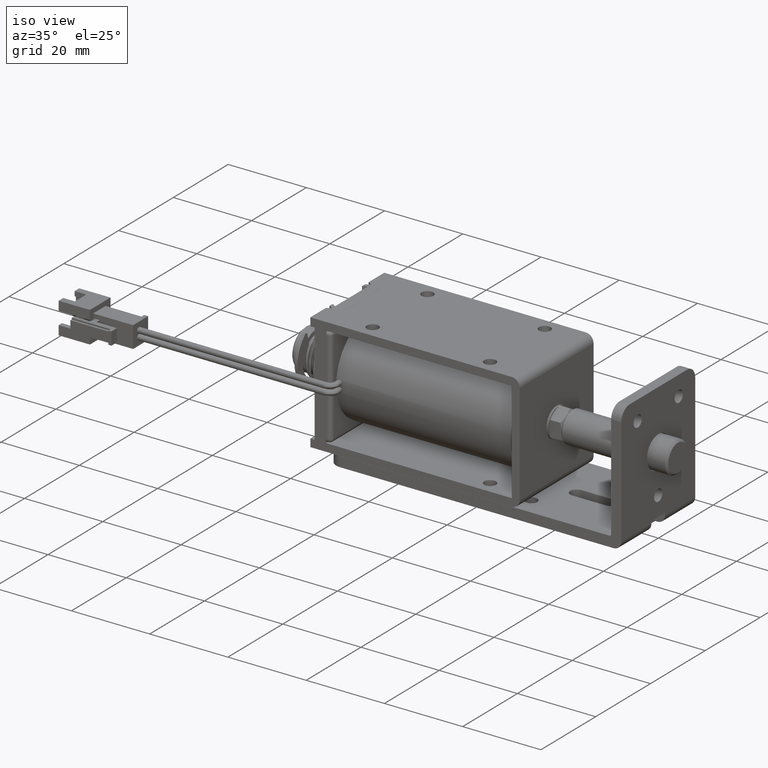
[diagram: clean part render]
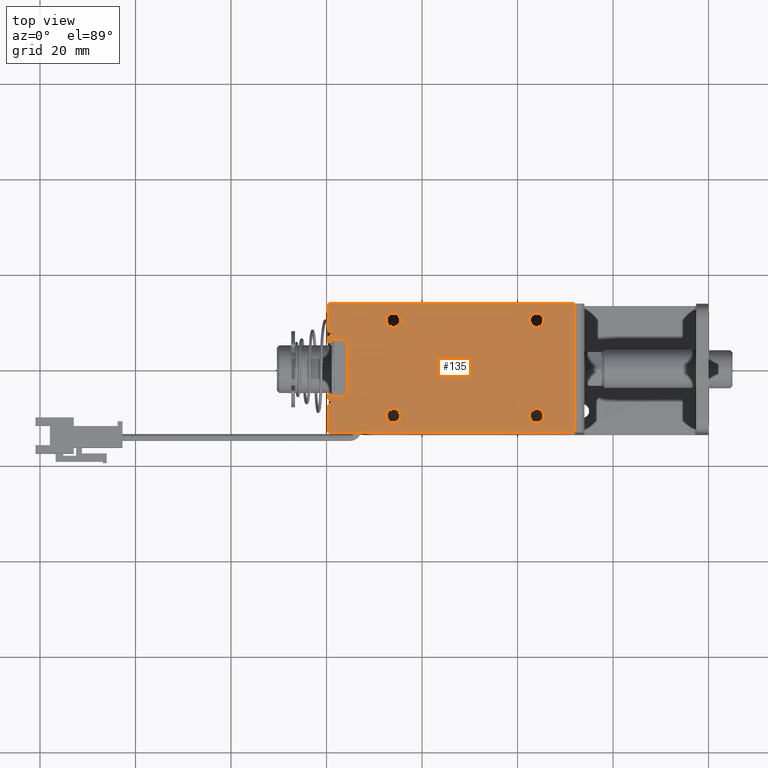
[diagram: tour spotlight — one face highlighted and labeled with its STEP entity id]
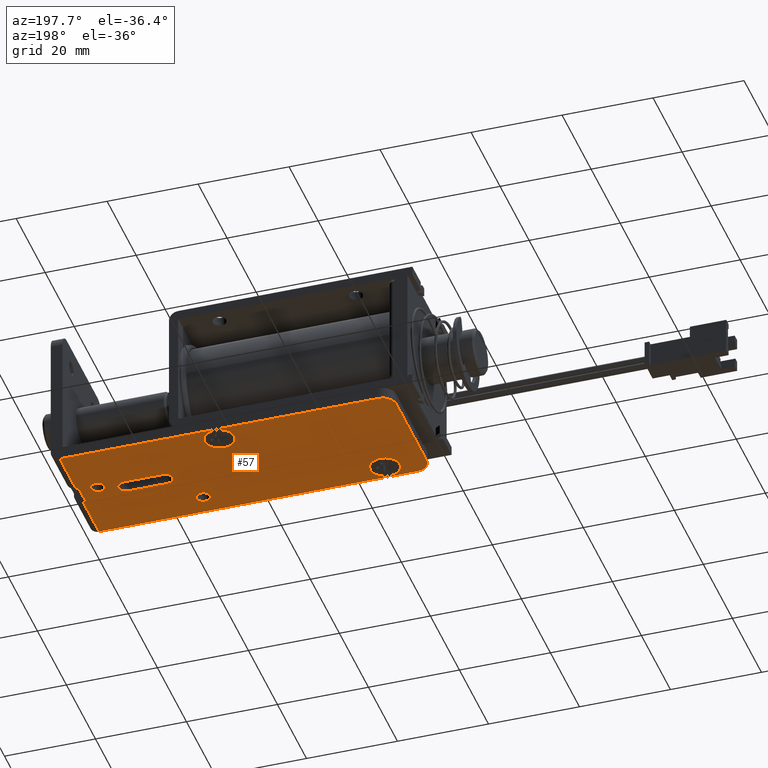
[diagram: tour spotlight — one face highlighted and labeled with its STEP entity id]
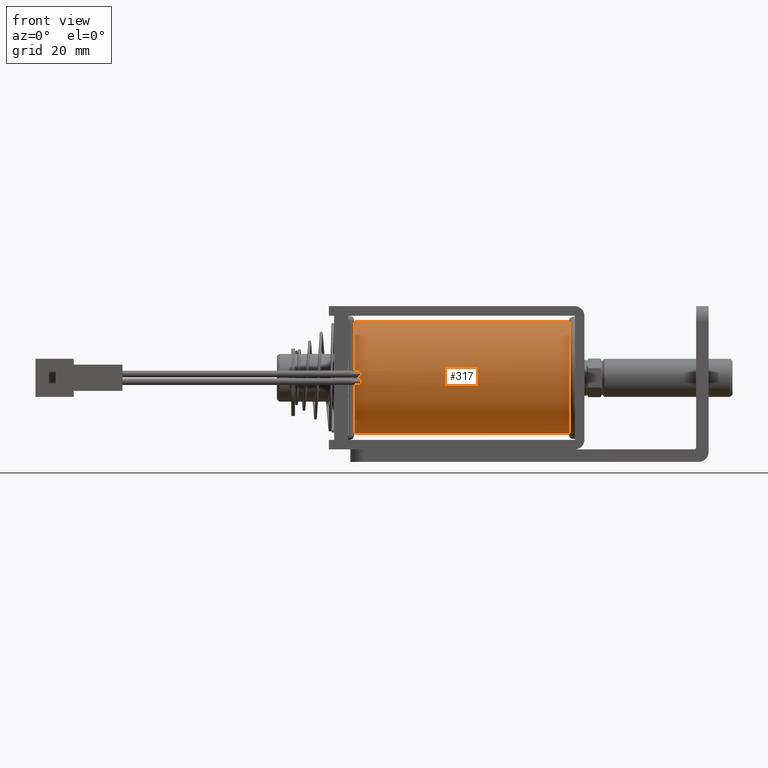
[diagram: tour spotlight — one face highlighted and labeled with its STEP entity id]
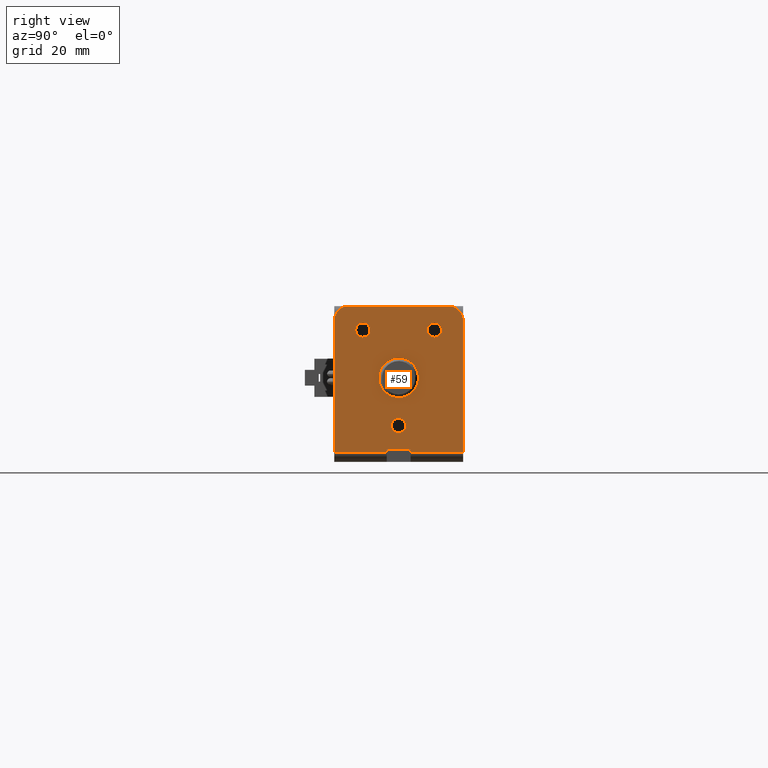
[diagram: tour spotlight — one face highlighted and labeled with its STEP entity id]
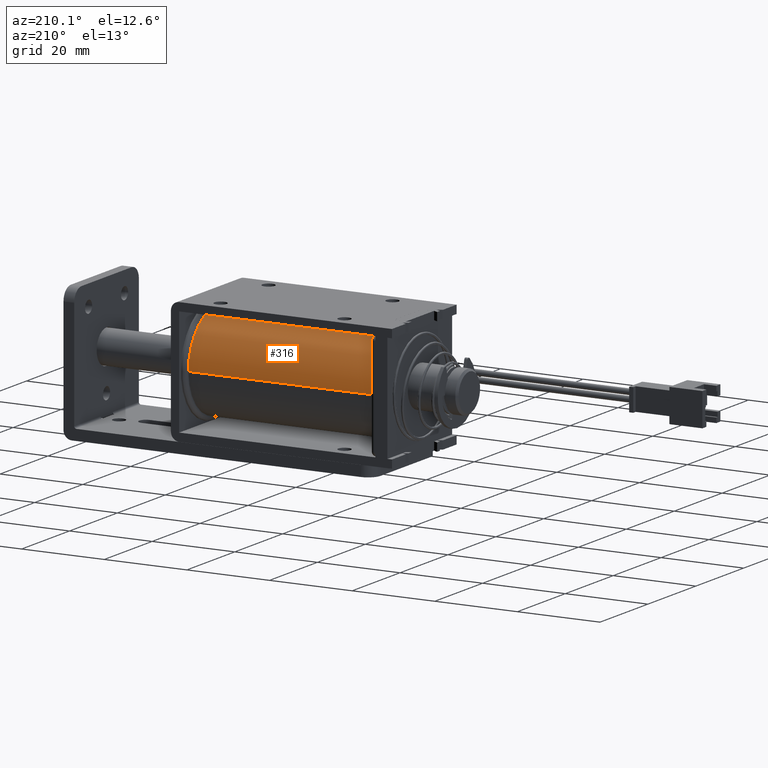
[diagram: tour spotlight — one face highlighted and labeled with its STEP entity id]
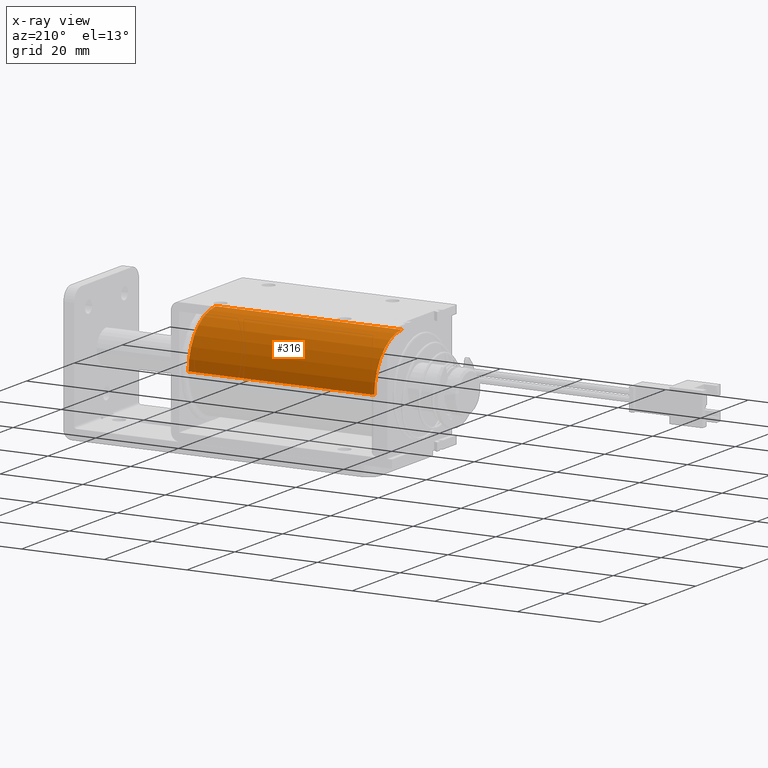
[diagram: x-ray of the same camera — body ghosted, this tour face saturated]
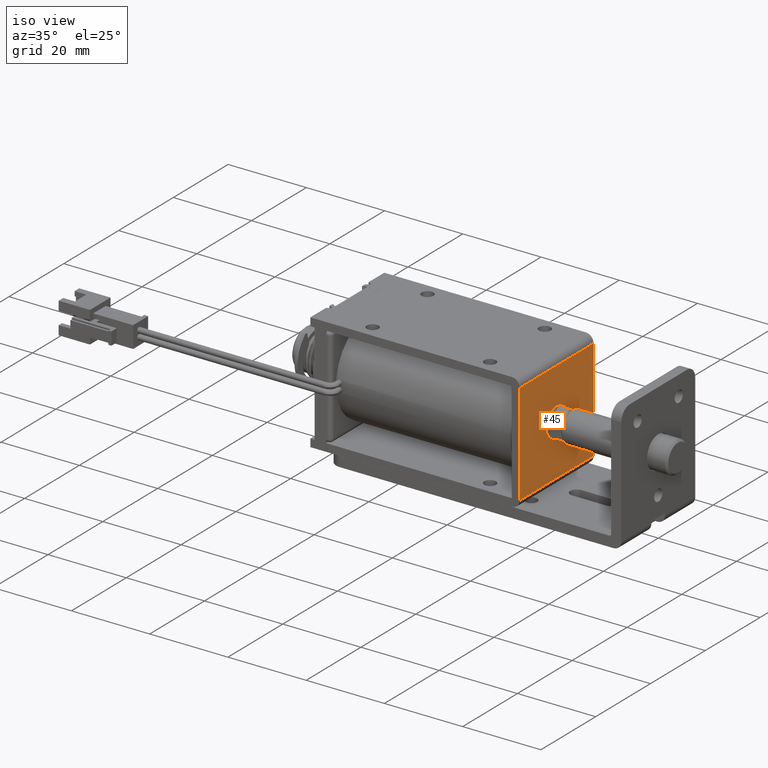
[diagram: tour spotlight — one face highlighted and labeled with its STEP entity id]
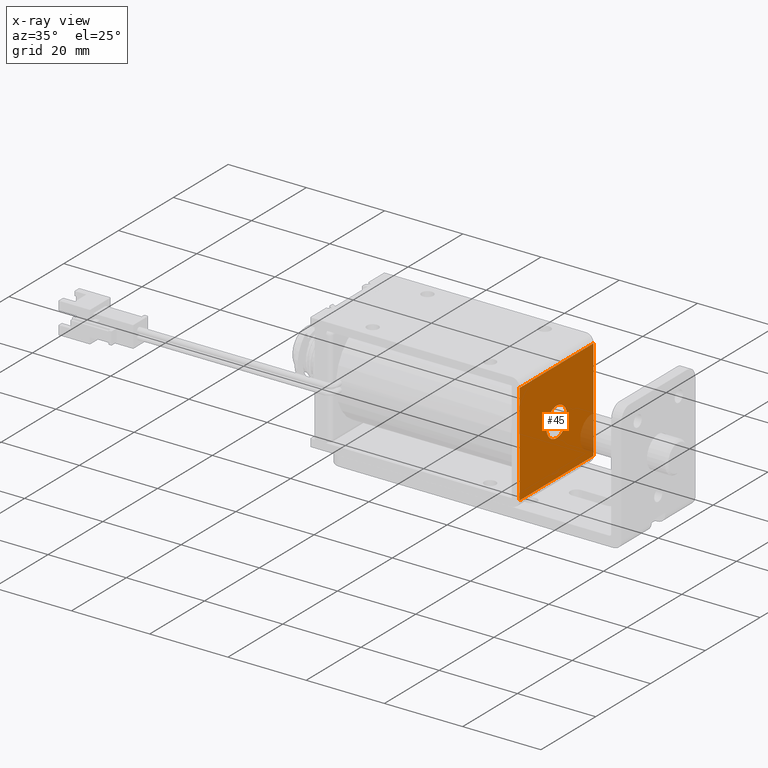
[diagram: x-ray of the same camera — body ghosted, this tour face saturated]
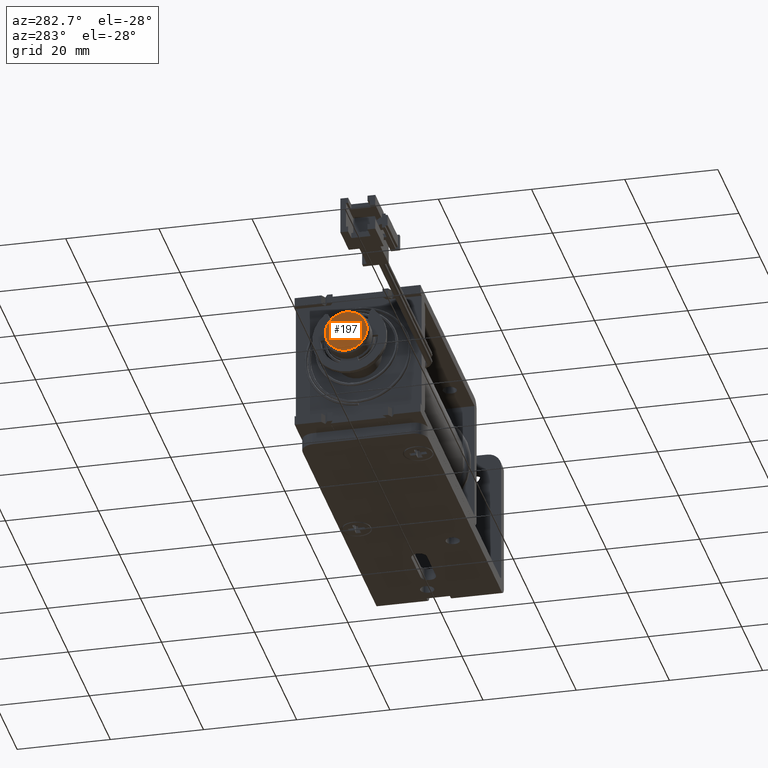
[diagram: tour spotlight — one face highlighted and labeled with its STEP entity id]
A machine part: a face-by-face anatomy tour. The part has 346 B-rep faces; the first image is the clean iso view, then the 7 largest visible faces are spotlighted one at a time (largest first), each with its STEP entity span.

Face 1 — top view, entity #135. In plain terms, the highlighted planar face has unit normal (0, -0, 1).
Definition (entity closure, byte-faithful):
#135=ADVANCED_FACE('',(#1363,#1364,#1365,#1366,#1367),#1362,.T.);
#1362=PLANE('',#4394);
#1363=FACE_OUTER_BOUND('',#4395,.T.);
#1364=FACE_BOUND('',#4396,.T.);
#1365=FACE_BOUND('',#4397,.T.);
#1366=FACE_BOUND('',#4398,.T.);
#1367=FACE_BOUND('',#4399,.T.);
#4391=CARTESIAN_POINT('',(-8.46500000000E+001,-1.62000000000E+001,1.50000000000E+001));
#4392=DIRECTION('',(0.00000000000E+000,-0.00000000000E+000,1.00000000000E+000));
#4393=DIRECTION('',(1.00000000000E+000,0.00000000000E+000,-0.00000000000E+000));
#4394=AXIS2_PLACEMENT_3D('',#4391,#4392,#4393);
#4395=EDGE_LOOP('',(#7533,#7534,#7535,#7536,#7537,#7538,#7539,#7540,#7541,#7542,#7543,#7544,#7545,#7546,#7547,#7548));
#4396=EDGE_LOOP('',(#7549,#7550));
#4397=EDGE_LOOP('',(#7551,#7552));
#4398=EDGE_LOOP('',(#7553,#7554));
#4399=EDGE_LOOP('',(#7555,#7556));
#7533=ORIENTED_EDGE('',*,*,#9128,.F.);
#7534=ORIENTED_EDGE('',*,*,#9129,.F.);
#7535=ORIENTED_EDGE('',*,*,#9130,.F.);
#7536=ORIENTED_EDGE('',*,*,#9131,.F.);
#7537=ORIENTED_EDGE('',*,*,#9132,.T.);
#7538=ORIENTED_EDGE('',*,*,#9133,.F.);
#7539=ORIENTED_EDGE('',*,*,#9134,.F.);
#7540=ORIENTED_EDGE('',*,*,#9135,.T.);
#7541=ORIENTED_EDGE('',*,*,#9136,.F.);
#7542=ORIENTED_EDGE('',*,*,#9137,.F.);
#7543=ORIENTED_EDGE('',*,*,#9138,.T.);
#7544=ORIENTED_EDGE('',*,*,#9139,.T.);
#7545=ORIENTED_EDGE('',*,*,#9140,.F.);
#7546=ORIENTED_EDGE('',*,*,#9141,.F.);
#7547=ORIENTED_EDGE('',*,*,#9142,.T.);
#7548=ORIENTED_EDGE('',*,*,#9143,.F.);
#7549=ORIENTED_EDGE('',*,*,#9144,.F.);
#7550=ORIENTED_EDGE('',*,*,#9145,.F.);
#7551=ORIENTED_EDGE('',*,*,#9146,.F.);
#7552=ORIENTED_EDGE('',*,*,#9147,.F.);
#7553=ORIENTED_EDGE('',*,*,#9148,.F.);
#7554=ORIENTED_EDGE('',*,*,#9149,.F.);
#7555=ORIENTED_EDGE('',*,*,#9150,.F.);
#7556=ORIENTED_EDGE('',*,*,#9151,.F.);
#9128=EDGE_CURVE('',#12230,#12231,#12232,.T.);
#9129=EDGE_CURVE('',#12238,#12230,#12239,.T.);
#9130=EDGE_CURVE('',#12245,#12238,#12246,.T.);
#9131=EDGE_CURVE('',#12252,#12245,#12253,.T.);
#9132=EDGE_CURVE('',#12252,#12259,#12260,.T.);
#9133=EDGE_CURVE('',#12266,#12259,#12267,.T.);
#9134=EDGE_CURVE('',#12273,#12266,#12274,.T.);
#9135=EDGE_CURVE('',#12273,#12280,#12281,.T.);
#9136=EDGE_CURVE('',#12287,#12280,#12288,.T.);
#9137=EDGE_CURVE('',#12294,#12287,#12295,.T.);
#9138=EDGE_CURVE('',#12294,#12301,#12302,.T.);
#9139=EDGE_CURVE('',#12301,#12308,#12309,.T.);
#9140=EDGE_CURVE('',#12315,#12308,#12316,.T.);
#9141=EDGE_CURVE('',#12322,#12315,#12323,.T.);
#9142=EDGE_CURVE('',#12322,#12329,#12330,.T.);
#9143=EDGE_CURVE('',#12231,#12329,#12336,.T.);
#9144=EDGE_CURVE('',#12342,#12343,#12344,.T.);
#9145=EDGE_CURVE('',#12343,#12342,#12350,.T.);
#9146=EDGE_CURVE('',#12356,#12357,#12358,.T.);
#9147=EDGE_CURVE('',#12357,#12356,#12364,.T.);
#9148=EDGE_CURVE('',#12370,#12371,#12372,.T.);
#9149=EDGE_CURVE('',#12371,#12370,#12378,.T.);
#9150=EDGE_CURVE('',#12384,#12385,#12386,.T.);
#9151=EDGE_CURVE('',#12385,#12384,#12392,.T.);
#12230=VERTEX_POINT('',#17248);
#12231=VERTEX_POINT('',#17249);
#12232=LINE('',#17250,#17251);
#12238=VERTEX_POINT('',#17253);
#12239=LINE('',#17254,#17255);
#12245=VERTEX_POINT('',#17257);
#12246=LINE('',#17258,#17259);
#12252=VERTEX_POINT('',#17261);
#12253=LINE('',#17262,#17263);
#12259=VERTEX_POINT('',#17265);
#12260=LINE('',#17266,#17267);
#12266=VERTEX_POINT('',#17269);
#12267=LINE('',#17270,#17271);
#12273=VERTEX_POINT('',#17273);
#12274=LINE('',#17274,#17275);
#12280=VERTEX_POINT('',#17277);
#12281=LINE('',#17278,#17279);
#12287=VERTEX_POINT('',#17281);
#12288=LINE('',#17282,#17283);
#12294=VERTEX_POINT('',#17285);
#12295=LINE('',#17286,#17287);
#12301=VERTEX_POINT('',#17289);
#12302=LINE('',#17290,#17291);
#12308=VERTEX_POINT('',#17293);
#12309=LINE('',#17294,#17295);
#12315=VERTEX_POINT('',#17297);
#12316=LINE('',#17298,#17299);
#12322=VERTEX_POINT('',#17301);
#12323=LINE('',#17302,#17303);
#12329=VERTEX_POINT('',#17305);
#12330=LINE('',#17306,#17307);
#12336=LINE('',#17309,#17310);
#12342=VERTEX_POINT('',#17312);
#12343=VERTEX_POINT('',#17313);
#12344=CIRCLE('',#17317,1.50000000000E+000);
#12350=CIRCLE('',#17321,1.50000000000E+000);
#12356=VERTEX_POINT('',#17322);
#12357=VERTEX_POINT('',#17323);
#12358=CIRCLE('',#17327,1.50000000000E+000);
#12364=CIRCLE('',#17331,1.50000000000E+000);
#12370=VERTEX_POINT('',#17332);
#12371=VERTEX_POINT('',#17333);
#12372=CIRCLE('',#17337,1.50000000000E+000);
#12378=CIRCLE('',#17341,1.50000000000E+000);
#12384=VERTEX_POINT('',#17342);
#12385=VERTEX_POINT('',#17343);
#12386=CIRCLE('',#17347,1.50000000000E+000);
#12392=CIRCLE('',#17351,1.50000000000E+000);
#17248=CARTESIAN_POINT('',(-7.55000000000E+001,6.00000000000E+000,1.50000000000E+001));
#17249=CARTESIAN_POINT('',(-7.84000000000E+001,6.00000000000E+000,1.50000000000E+001));
#17250=CARTESIAN_POINT('',(-7.55000000000E+001,6.00000000000E+000,1.50000000000E+001));
#17251=VECTOR('',#17252,2.90000000000E+000);
#17252=DIRECTION('',(-1.00000000000E+000,3.88960894145E-014,0.00000000000E+000));
#17253=CARTESIAN_POINT('',(-7.55000000000E+001,-6.00000000000E+000,1.50000000000E+001));
#17254=CARTESIAN_POINT('',(-7.55000000000E+001,-6.00000000000E+000,1.50000000000E+001));
#17255=VECTOR('',#17256,1.20000000000E+001);
#17256=DIRECTION('',(0.00000000000E+000,1.00000000000E+000,0.00000000000E+000));
#17257=CARTESIAN_POINT('',(-7.84000000000E+001,-6.00000000000E+000,1.50000000000E+001));
#17258=CARTESIAN_POINT('',(-7.84000000000E+001,-6.00000000000E+000,1.50000000000E+001));
#17259=VECTOR('',#17260,2.90000000000E+000);
#17260=DIRECTION('',(1.00000000000E+000,3.06268420586E-016,0.00000000000E+000));
#17261=CARTESIAN_POINT('',(-7.95000000000E+001,-5.36491470389E+000,1.50000000000E+001));
#17262=CARTESIAN_POINT('',(-7.95000000000E+001,-5.36491470389E+000,1.50000000000E+001));
#17263=VECTOR('',#17264,1.27017059222E+000);
#17264=DIRECTION('',(8.66025403784E-001,-5.00000000000E-001,0.00000000000E+000));
#17265=CARTESIAN_POINT('',(-7.95000000000E+001,-6.51961524227E+000,1.50000000000E+001));
#17266=CARTESIAN_POINT('',(-7.95000000000E+001,-5.36491470389E+000,1.50000000000E+001));
#17267=VECTOR('',#17268,1.15470053838E+000);
#17268=DIRECTION('',(0.00000000000E+000,-1.00000000000E+000,0.00000000000E+000));
#17269=CARTESIAN_POINT('',(-7.84000000000E+001,-7.15470053838E+000,1.50000000000E+001));
#17270=CARTESIAN_POINT('',(-7.84000000000E+001,-7.15470053838E+000,1.50000000000E+001));
#17271=VECTOR('',#17272,1.27017059222E+000);
#17272=DIRECTION('',(-8.66025403784E-001,5.00000000000E-001,0.00000000000E+000));
#17273=CARTESIAN_POINT('',(-7.95000000000E+001,-7.78978583449E+000,1.50000000000E+001));
#17274=CARTESIAN_POINT('',(-7.95000000000E+001,-7.78978583449E+000,1.50000000000E+001));
#17275=VECTOR('',#17276,1.27017059222E+000);
#17276=DIRECTION('',(8.66025403784E-001,5.00000000000E-001,0.00000000000E+000));
#17277=CARTESIAN_POINT('',(-7.95000000000E+001,-1.35000000000E+001,1.50000000000E+001));
#17278=CARTESIAN_POINT('',(-7.95000000000E+001,-7.78978583449E+000,1.50000000000E+001));
#17279=VECTOR('',#17280,5.71021416551E+000);
#17280=DIRECTION('',(0.00000000000E+000,-1.00000000000E+000,0.00000000000E+000));
#17281=CARTESIAN_POINT('',(-2.80000000000E+001,-1.35000000000E+001,1.50000000000E+001));
#17282=CARTESIAN_POINT('',(-2.80000000000E+001,-1.35000000000E+001,1.50000000000E+001));
#17283=VECTOR('',#17284,5.15000000000E+001);
#17284=DIRECTION('',(-1.00000000000E+000,0.00000000000E+000,0.00000000000E+000));
#17285=CARTESIAN_POINT('',(-2.80000000000E+001,1.35000000000E+001,1.50000000000E+001));
#17286=CARTESIAN_POINT('',(-2.80000000000E+001,1.35000000000E+001,1.50000000000E+001));
#17287=VECTOR('',#17288,2.70000000000E+001);
#17288=DIRECTION('',(0.00000000000E+000,-1.00000000000E+000,0.00000000000E+000));
#17289=CARTESIAN_POINT('',(-7.95000000000E+001,1.35000000000E+001,1.50000000000E+001));
#17290=CARTESIAN_POINT('',(-2.80000000000E+001,1.35000000000E+001,1.50000000000E+001));
#17291=VECTOR('',#17292,5.15000000000E+001);
#17292=DIRECTION('',(-1.00000000000E+000,0.00000000000E+000,0.00000000000E+000));
#17293=CARTESIAN_POINT('',(-7.95000000000E+001,7.78978583449E+000,1.50000000000E+001));
#17294=CARTESIAN_POINT('',(-7.95000000000E+001,1.35000000000E+001,1.50000000000E+001));
#17295=VECTOR('',#17296,5.71021416551E+000);
#17296=DIRECTION('',(0.00000000000E+000,-1.00000000000E+000,0.00000000000E+000));
#17297=CARTESIAN_POINT('',(-7.84000000000E+001,7.15470053838E+000,1.50000000000E+001));
#17298=CARTESIAN_POINT('',(-7.84000000000E+001,7.15470053838E+000,1.50000000000E+001));
#17299=VECTOR('',#17300,1.27017059222E+000);
#17300=DIRECTION('',(-8.66025403784E-001,5.00000000000E-001,0.00000000000E+000));
#17301=CARTESIAN_POINT('',(-7.95000000000E+001,6.51961524227E+000,1.50000000000E+001));
#17302=CARTESIAN_POINT('',(-7.95000000000E+001,6.51961524227E+000,1.50000000000E+001));
#17303=VECTOR('',#17304,1.27017059222E+000);
#17304=DIRECTION('',(8.66025403785E-001,5.00000000000E-001,0.00000000000E+000));
#17305=CARTESIAN_POINT('',(-7.95000000000E+001,5.36491470389E+000,1.50000000000E+001));
#17306=CARTESIAN_POINT('',(-7.95000000000E+001,6.51961524227E+000,1.50000000000E+001));
#17307=VECTOR('',#17308,1.15470053838E+000);
#17308=DIRECTION('',(0.00000000000E+000,-1.00000000000E+000,0.00000000000E+000));
#17309=CARTESIAN_POINT('',(-7.84000000000E+001,6.00000000000E+000,1.50000000000E+001));
#17310=VECTOR('',#17311,1.27017059222E+000);
#17311=DIRECTION('',(-8.66025403785E-001,-5.00000000000E-001,0.00000000000E+000));
#17312=CARTESIAN_POINT('',(-3.75000000000E+001,1.00000000000E+001,1.50000000000E+001));
#17313=CARTESIAN_POINT('',(-3.45000000000E+001,1.00000000000E+001,1.50000000000E+001));
#17314=CARTESIAN_POINT('',(-3.60000000000E+001,1.00000000000E+001,1.50000000000E+001));
#17315=DIRECTION('',(0.00000000000E+000,-0.00000000000E+000,1.00000000000E+000));
#17316=DIRECTION('',(1.00000000000E+000,-1.22460635382E-016,-0.00000000000E+000));
#17317=AXIS2_PLACEMENT_3D('',#17314,#17315,#17316);
#17318=CARTESIAN_POINT('',(-3.60000000000E+001,1.00000000000E+001,1.50000000000E+001));
#17319=DIRECTION('',(0.00000000000E+000,-0.00000000000E+000,1.00000000000E+000));
#17320=DIRECTION('',(1.00000000000E+000,-1.22460635382E-016,-0.00000000000E+000));
#17321=AXIS2_PLACEMENT_3D('',#17318,#17319,#17320);
#17322=CARTESIAN_POINT('',(-3.75000000000E+001,-1.00000000000E+001,1.50000000000E+001));
#17323=CARTESIAN_POINT('',(-3.45000000000E+001,-1.00000000000E+001,1.50000000000E+001));
#17324=CARTESIAN_POINT('',(-3.60000000000E+001,-1.00000000000E+001,1.50000000000E+001));
#17325=DIRECTION('',(0.00000000000E+000,-0.00000000000E+000,1.00000000000E+000));
#17326=DIRECTION('',(1.00000000000E+000,-1.22460635382E-016,-0.00000000000E+000));
#17327=AXIS2_PLACEMENT_3D('',#17324,#17325,#17326);
#17328=CARTESIAN_POINT('',(-3.60000000000E+001,-1.00000000000E+001,1.50000000000E+001));
#17329=DIRECTION('',(0.00000000000E+000,-0.00000000000E+000,1.00000000000E+000));
#17330=DIRECTION('',(1.00000000000E+000,-1.22460635382E-016,-0.00000000000E+000));
#17331=AXIS2_PLACEMENT_3D('',#17328,#17329,#17330);
#17332=CARTESIAN_POINT('',(-6.75000000000E+001,-1.00000000000E+001,1.50000000000E+001));
#17333=CARTESIAN_POINT('',(-6.45000000000E+001,-1.00000000000E+001,1.50000000000E+001));
#17334=CARTESIAN_POINT('',(-6.60000000000E+001,-1.00000000000E+001,1.50000000000E+001));
#17335=DIRECTION('',(0.00000000000E+000,-0.00000000000E+000,1.00000000000E+000));
#17336=DIRECTION('',(1.00000000000E+000,-1.22460635382E-016,-0.00000000000E+000));
#17337=AXIS2_PLACEMENT_3D('',#17334,#17335,#17336);
#17338=CARTESIAN_POINT('',(-6.60000000000E+001,-1.00000000000E+001,1.50000000000E+001));
#17339=DIRECTION('',(0.00000000000E+000,-0.00000000000E+000,1.00000000000E+000));
#17340=DIRECTION('',(1.00000000000E+000,-1.22460635382E-016,-0.00000000000E+000));
#17341=AXIS2_PLACEMENT_3D('',#17338,#17339,#17340);
#17342=CARTESIAN_POINT('',(-6.75000000000E+001,1.00000000000E+001,1.50000000000E+001));
#17343=CARTESIAN_POINT('',(-6.45000000000E+001,1.00000000000E+001,1.50000000000E+001));
#17344=CARTESIAN_POINT('',(-6.60000000000E+001,1.00000000000E+001,1.50000000000E+001));
#17345=DIRECTION('',(0.00000000000E+000,-0.00000000000E+000,1.00000000000E+000));
#17346=DIRECTION('',(1.00000000000E+000,-1.22460635382E-016,-0.00000000000E+000));
#17347=AXIS2_PLACEMENT_3D('',#17344,#17345,#17346);
#17348=CARTESIAN_POINT('',(-6.60000000000E+001,1.00000000000E+001,1.50000000000E+001));
#17349=DIRECTION('',(0.00000000000E+000,-0.00000000000E+000,1.00000000000E+000));
#17350=DIRECTION('',(1.00000000000E+000,-1.22460635382E-016,-0.00000000000E+000));
#17351=AXIS2_PLACEMENT_3D('',#17348,#17349,#17350);

Face 2 — auxiliary view, entity #57. In plain terms, the highlighted planar face has unit normal (0, -0, 1).
Definition (entity closure, byte-faithful):
#57=ADVANCED_FACE('',(#562,#563,#564,#565,#566,#567),#561,.F.);
#561=PLANE('',#3981);
#562=FACE_OUTER_BOUND('',#3982,.T.);
#563=FACE_BOUND('',#3983,.T.);
#564=FACE_BOUND('',#3984,.T.);
#565=FACE_BOUND('',#3985,.T.);
#566=FACE_BOUND('',#3986,.T.);
#567=FACE_BOUND('',#3987,.T.);
#3978=CARTESIAN_POINT('',(-8.23000000000E+001,-1.62000000000E+001,-1.76000000000E+001));
#3979=DIRECTION('',(0.00000000000E+000,-0.00000000000E+000,1.00000000000E+000));
#3980=DIRECTION('',(1.00000000000E+000,0.00000000000E+000,-0.00000000000E+000));
#3981=AXIS2_PLACEMENT_3D('',#3978,#3979,#3980);
#3982=EDGE_LOOP('',(#7035,#7036,#7037,#7038,#7039,#7040,#7041,#7042,#7043,#7044));
#3983=EDGE_LOOP('',(#7045,#7046));
#3984=EDGE_LOOP('',(#7047,#7048));
#3985=EDGE_LOOP('',(#7049,#7050,#7051,#7052));
#3986=EDGE_LOOP('',(#7053,#7054));
#3987=EDGE_LOOP('',(#7055,#7056));
#7035=ORIENTED_EDGE('',*,*,#8842,.T.);
#7036=ORIENTED_EDGE('',*,*,#8843,.T.);
#7037=ORIENTED_EDGE('',*,*,#8839,.F.);
#7038=ORIENTED_EDGE('',*,*,#8844,.T.);
#7039=ORIENTED_EDGE('',*,*,#8845,.F.);
#7040=ORIENTED_EDGE('',*,*,#8846,.T.);
#7041=ORIENTED_EDGE('',*,*,#8813,.F.);
#7042=ORIENTED_EDGE('',*,*,#8816,.F.);
#7043=ORIENTED_EDGE('',*,*,#8817,.F.);
#7044=ORIENTED_EDGE('',*,*,#8847,.T.);
#7045=ORIENTED_EDGE('',*,*,#8848,.T.);
#7046=ORIENTED_EDGE('',*,*,#8849,.T.);
#7047=ORIENTED_EDGE('',*,*,#8850,.F.);
#7048=ORIENTED_EDGE('',*,*,#8851,.F.);
#7049=ORIENTED_EDGE('',*,*,#8802,.F.);
#7050=ORIENTED_EDGE('',*,*,#8792,.F.);
#7051=ORIENTED_EDGE('',*,*,#8796,.F.);
#7052=ORIENTED_EDGE('',*,*,#8799,.F.);
#7053=ORIENTED_EDGE('',*,*,#8852,.F.);
#7054=ORIENTED_EDGE('',*,*,#8853,.F.);
#7055=ORIENTED_EDGE('',*,*,#8854,.T.);
#7056=ORIENTED_EDGE('',*,*,#8855,.T.);
#8792=EDGE_CURVE('',#9964,#9965,#9966,.T.);
#8796=EDGE_CURVE('',#9992,#9964,#9993,.T.);
#8799=EDGE_CURVE('',#10012,#9992,#10013,.T.);
#8802=EDGE_CURVE('',#9965,#10012,#10032,.T.);
#8813=EDGE_CURVE('',#10100,#10107,#10108,.T.);
#8816=EDGE_CURVE('',#10120,#10100,#10127,.T.);
#8817=EDGE_CURVE('',#10133,#10120,#10134,.T.);
#8839=EDGE_CURVE('',#10280,#10281,#10282,.T.);
#8842=EDGE_CURVE('',#10300,#10301,#10302,.T.);
#8843=EDGE_CURVE('',#10301,#10281,#10308,.T.);
#8844=EDGE_CURVE('',#10280,#10314,#10315,.T.);
#8845=EDGE_CURVE('',#10321,#10314,#10322,.T.);
#8846=EDGE_CURVE('',#10321,#10107,#10328,.T.);
#8847=EDGE_CURVE('',#10133,#10300,#10334,.T.);
#8848=EDGE_CURVE('',#10340,#10341,#10342,.T.);
#8849=EDGE_CURVE('',#10341,#10340,#10348,.T.);
#8850=EDGE_CURVE('',#10354,#10355,#10356,.T.);
#8851=EDGE_CURVE('',#10355,#10354,#10362,.T.);
#8852=EDGE_CURVE('',#10368,#10369,#10370,.T.);
#8853=EDGE_CURVE('',#10369,#10368,#10376,.T.);
#8854=EDGE_CURVE('',#10382,#10383,#10384,.T.);
#8855=EDGE_CURVE('',#10383,#10382,#10390,.T.);
#9964=VERTEX_POINT('',#15903);
#9965=VERTEX_POINT('',#15904);
#9966=LINE('',#15905,#15906);
#9992=VERTEX_POINT('',#15919);
#9993=CIRCLE('',#15923,1.65000000000E+000);
#10012=VERTEX_POINT('',#15932);
#10013=LINE('',#15933,#15934);
#10032=CIRCLE('',#15946,1.65000000000E+000);
#10100=VERTEX_POINT('',#15984);
#10107=VERTEX_POINT('',#15988);
#10108=LINE('',#15989,#15990);
#10120=VERTEX_POINT('',#15996);
#10127=LINE('',#16000,#16001);
#10133=VERTEX_POINT('',#16003);
#10134=LINE('',#16004,#16005);
#10280=VERTEX_POINT('',#16092);
#10281=VERTEX_POINT('',#16093);
#10282=LINE('',#16094,#16095);
#10300=VERTEX_POINT('',#16103);
#10301=VERTEX_POINT('',#16104);
#10302=LINE('',#16105,#16106);
#10308=CIRCLE('',#16111,3.00000000000E+000);
#10314=VERTEX_POINT('',#16112);
#10315=CIRCLE('',#16116,3.00000000000E+000);
#10321=VERTEX_POINT('',#16117);
#10322=LINE('',#16118,#16119);
#10328=LINE('',#16121,#16122);
#10334=LINE('',#16124,#16125);
#10340=VERTEX_POINT('',#16127);
#10341=VERTEX_POINT('',#16128);
#10342=CIRCLE('',#16132,3.25000000000E+000);
#10348=CIRCLE('',#16136,3.25000000000E+000);
#10354=VERTEX_POINT('',#16137);
#10355=VERTEX_POINT('',#16138);
#10356=CIRCLE('',#16142,1.50000000000E+000);
#10362=CIRCLE('',#16146,1.50000000000E+000);
#10368=VERTEX_POINT('',#16147);
#10369=VERTEX_POINT('',#16148);
#10370=CIRCLE('',#16152,1.50000000000E+000);
#10376=CIRCLE('',#16156,1.50000000000E+000);
#10382=VERTEX_POINT('',#16157);
#10383=VERTEX_POINT('',#16158);
#10384=CIRCLE('',#16162,3.25000000000E+000);
#10390=CIRCLE('',#16166,3.25000000000E+000);
#15903=CARTESIAN_POINT('',(-1.21500000000E+001,-1.65000000000E+000,-1.76000000000E+001));
#15904=CARTESIAN_POINT('',(-2.08500000000E+001,-1.65000000000E+000,-1.76000000000E+001));
#15905=CARTESIAN_POINT('',(-1.21500000000E+001,-1.65000000000E+000,-1.76000000000E+001));
#15906=VECTOR('',#15907,8.70000000000E+000);
#15907=DIRECTION('',(-1.00000000000E+000,0.00000000000E+000,0.00000000000E+000));
#15919=CARTESIAN_POINT('',(-1.21500000000E+001,1.65000000000E+000,-1.76000000000E+001));
#15920=CARTESIAN_POINT('',(-1.21500000000E+001,0.00000000000E+000,-1.76000000000E+001));
#15921=DIRECTION('',(-0.00000000000E+000,0.00000000000E+000,-1.00000000000E+000));
#15922=DIRECTION('',(-1.00000000000E+000,-0.00000000000E+000,0.00000000000E+000));
#15923=AXIS2_PLACEMENT_3D('',#15920,#15921,#15922);
#15932=CARTESIAN_POINT('',(-2.08500000000E+001,1.65000000000E+000,-1.76000000000E+001));
#15933=CARTESIAN_POINT('',(-2.08500000000E+001,1.65000000000E+000,-1.76000000000E+001));
#15934=VECTOR('',#15935,8.70000000000E+000);
#15935=DIRECTION('',(1.00000000000E+000,0.00000000000E+000,0.00000000000E+000));
#15943=CARTESIAN_POINT('',(-2.08500000000E+001,0.00000000000E+000,-1.76000000000E+001));
#15944=DIRECTION('',(0.00000000000E+000,0.00000000000E+000,-1.00000000000E+000));
#15945=DIRECTION('',(1.83690953073E-016,1.00000000000E+000,0.00000000000E+000));
#15946=AXIS2_PLACEMENT_3D('',#15943,#15944,#15945);
#15984=CARTESIAN_POINT('',(-2.60000000000E+000,2.50000000000E+000,-1.76000000000E+001));
#15988=CARTESIAN_POINT('',(-2.00000000000E+000,2.50000000000E+000,-1.76000000000E+001));
#15989=CARTESIAN_POINT('',(-2.60000000000E+000,2.50000000000E+000,-1.76000000000E+001));
#15990=VECTOR('',#15991,6.00000000000E-001);
#15991=DIRECTION('',(1.00000000000E+000,0.00000000000E+000,0.00000000000E+000));
#15996=CARTESIAN_POINT('',(-2.60000000000E+000,-2.50000000000E+000,-1.76000000000E+001));
#16000=CARTESIAN_POINT('',(-2.60000000000E+000,-2.50000000000E+000,-1.76000000000E+001));
#16001=VECTOR('',#16002,5.00000000000E+000);
#16002=DIRECTION('',(0.00000000000E+000,1.00000000000E+000,0.00000000000E+000));
#16003=CARTESIAN_POINT('',(-2.00000000000E+000,-2.50000000000E+000,-1.76000000000E+001));
#16004=CARTESIAN_POINT('',(-2.00000000000E+000,-2.50000000000E+000,-1.76000000000E+001));
#16005=VECTOR('',#16006,6.00000000000E-001);
#16006=DIRECTION('',(-1.00000000000E+000,0.00000000000E+000,0.00000000000E+000));
#16092=CARTESIAN_POINT('',(-7.50000000000E+001,1.05000000000E+001,-1.76000000000E+001));
#16093=CARTESIAN_POINT('',(-7.50000000000E+001,-1.05000000000E+001,-1.76000000000E+001));
#16094=CARTESIAN_POINT('',(-7.50000000000E+001,1.05000000000E+001,-1.76000000000E+001));
#16095=VECTOR('',#16096,2.10000000000E+001);
#16096=DIRECTION('',(0.00000000000E+000,-1.00000000000E+000,0.00000000000E+000));
#16103=CARTESIAN_POINT('',(-2.00000000000E+000,-1.35000000000E+001,-1.76000000000E+001));
#16104=CARTESIAN_POINT('',(-7.20000000000E+001,-1.35000000000E+001,-1.76000000000E+001));
#16105=CARTESIAN_POINT('',(-2.00000000000E+000,-1.35000000000E+001,-1.76000000000E+001));
#16106=VECTOR('',#16107,7.00000000000E+001);
#16107=DIRECTION('',(-1.00000000000E+000,0.00000000000E+000,0.00000000000E+000));
#16108=CARTESIAN_POINT('',(-7.20000000000E+001,-1.05000000000E+001,-1.76000000000E+001));
#16109=DIRECTION('',(-0.00000000000E+000,0.00000000000E+000,-1.00000000000E+000));
#16110=DIRECTION('',(-1.00000000000E+000,-0.00000000000E+000,0.00000000000E+000));
#16111=AXIS2_PLACEMENT_3D('',#16108,#16109,#16110);
#16112=CARTESIAN_POINT('',(-7.20000000000E+001,1.35000000000E+001,-1.76000000000E+001));
#16113=CARTESIAN_POINT('',(-7.20000000000E+001,1.05000000000E+001,-1.76000000000E+001));
#16114=DIRECTION('',(0.00000000000E+000,0.00000000000E+000,-1.00000000000E+000));
#16115=DIRECTION('',(1.83690953073E-016,1.00000000000E+000,0.00000000000E+000));
#16116=AXIS2_PLACEMENT_3D('',#16113,#16114,#16115);
#16117=CARTESIAN_POINT('',(-2.00000000000E+000,1.35000000000E+001,-1.76000000000E+001));
#16118=CARTESIAN_POINT('',(-2.00000000000E+000,1.35000000000E+001,-1.76000000000E+001));
#16119=VECTOR('',#16120,7.00000000000E+001);
#16120=DIRECTION('',(-1.00000000000E+000,0.00000000000E+000,0.00000000000E+000));
#16121=CARTESIAN_POINT('',(-2.00000000000E+000,1.35000000000E+001,-1.76000000000E+001));
#16122=VECTOR('',#16123,1.10000000000E+001);
#16123=DIRECTION('',(0.00000000000E+000,-1.00000000000E+000,0.00000000000E+000));
#16124=CARTESIAN_POINT('',(-2.00000000000E+000,-2.50000000000E+000,-1.76000000000E+001));
#16125=VECTOR('',#16126,1.10000000000E+001);
#16126=DIRECTION('',(0.00000000000E+000,-1.00000000000E+000,0.00000000000E+000));
#16127=CARTESIAN_POINT('',(-6.27500000000E+001,-1.00000000000E+001,-1.76000000000E+001));
#16128=CARTESIAN_POINT('',(-6.92500000000E+001,-1.00000000000E+001,-1.76000000000E+001));
#16129=CARTESIAN_POINT('',(-6.60000000000E+001,-1.00000000000E+001,-1.76000000000E+001));
#16130=DIRECTION('',(0.00000000000E+000,-0.00000000000E+000,1.00000000000E+000));
#16131=DIRECTION('',(1.00000000000E+000,-1.22460635382E-016,-0.00000000000E+000));
#16132=AXIS2_PLACEMENT_3D('',#16129,#16130,#16131);
#16133=CARTESIAN_POINT('',(-6.60000000000E+001,-1.00000000000E+001,-1.76000000000E+001));
#16134=DIRECTION('',(0.00000000000E+000,-0.00000000000E+000,1.00000000000E+000));
#16135=DIRECTION('',(1.00000000000E+000,-1.22460635382E-016,-0.00000000000E+000));
#16136=AXIS2_PLACEMENT_3D('',#16133,#16134,#16135);
#16137=CARTESIAN_POINT('',(-2.80000000000E+001,-8.50000000000E+000,-1.76000000000E+001));
#16138=CARTESIAN_POINT('',(-2.50000000000E+001,-8.50000000000E+000,-1.76000000000E+001));
#16139=CARTESIAN_POINT('',(-2.65000000000E+001,-8.50000000000E+000,-1.76000000000E+001));
#16140=DIRECTION('',(0.00000000000E+000,0.00000000000E+000,-1.00000000000E+000));
#16141=DIRECTION('',(1.00000000000E+000,-1.22460635382E-016,-0.00000000000E+000));
#16142=AXIS2_PLACEMENT_3D('',#16139,#16140,#16141);
#16143=CARTESIAN_POINT('',(-2.65000000000E+001,-8.50000000000E+000,-1.76000000000E+001));
#16144=DIRECTION('',(0.00000000000E+000,0.00000000000E+000,-1.00000000000E+000));
#16145=DIRECTION('',(1.00000000000E+000,-1.22460635382E-016,-0.00000000000E+000));
#16146=AXIS2_PLACEMENT_3D('',#16143,#16144,#16145);
#16147=CARTESIAN_POINT('',(-8.00000000000E+000,1.50000000000E+000,-1.76000000000E+001));
#16148=CARTESIAN_POINT('',(-5.00000000000E+000,1.50000000000E+000,-1.76000000000E+001));
#16149=CARTESIAN_POINT('',(-6.50000000000E+000,1.50000000000E+000,-1.76000000000E+001));
#16150=DIRECTION('',(0.00000000000E+000,0.00000000000E+000,-1.00000000000E+000));
#16151=DIRECTION('',(1.00000000000E+000,-1.22460635382E-016,-0.00000000000E+000));
#16152=AXIS2_PLACEMENT_3D('',#16149,#16150,#16151);
#16153=CARTESIAN_POINT('',(-6.50000000000E+000,1.50000000000E+000,-1.76000000000E+001));
#16154=DIRECTION('',(0.00000000000E+000,0.00000000000E+000,-1.00000000000E+000));
#16155=DIRECTION('',(1.00000000000E+000,-1.22460635382E-016,-0.00000000000E+000));
#16156=AXIS2_PLACEMENT_3D('',#16153,#16154,#16155);
#16157=CARTESIAN_POINT('',(-3.27500000000E+001,1.00000000000E+001,-1.76000000000E+001));
#16158=CARTESIAN_POINT('',(-3.92500000000E+001,1.00000000000E+001,-1.76000000000E+001));
#16159=CARTESIAN_POINT('',(-3.60000000000E+001,1.00000000000E+001,-1.76000000000E+001));
#16160=DIRECTION('',(0.00000000000E+000,-0.00000000000E+000,1.00000000000E+000));
#16161=DIRECTION('',(1.00000000000E+000,-1.22460635382E-016,-0.00000000000E+000));
#16162=AXIS2_PLACEMENT_3D('',#16159,#16160,#16161);
#16163=CARTESIAN_POINT('',(-3.60000000000E+001,1.00000000000E+001,-1.76000000000E+001));
#16164=DIRECTION('',(0.00000000000E+000,-0.00000000000E+000,1.00000000000E+000));
#16165=DIRECTION('',(1.00000000000E+000,-1.22460635382E-016,-0.00000000000E+000));
#16166=AXIS2_PLACEMENT_3D('',#16163,#16164,#16165);

Face 3 — front view, entity #317. In plain terms, the highlighted cylindrical surface (partial cylindrical patch) has radius 11.7 mm, axis along (1, -0, -0).
Definition (entity closure, byte-faithful):
#317=ADVANCED_FACE('',(#3197,#3198,#3199),#3196,.T.);
#3196=CYLINDRICAL_SURFACE('',#5967,1.17000000000E+001);
#3197=FACE_OUTER_BOUND('',#5968,.T.);
#3198=FACE_BOUND('',#5969,.T.);
#3199=FACE_BOUND('',#5970,.T.);
#5964=CARTESIAN_POINT('',(0.00000000000E+000,0.00000000000E+000,0.00000000000E+000));
#5965=DIRECTION('',(1.00000000000E+000,-0.00000000000E+000,-0.00000000000E+000));
#5966=DIRECTION('',(0.00000000000E+000,9.99961923064E-001,-8.72653549837E-003));
#5967=AXIS2_PLACEMENT_3D('',#5964,#5965,#5966);
#5968=EDGE_LOOP('',(#8406,#8407,#8408,#8409,#8410,#8411));
#5969=EDGE_LOOP('',(#8412,#8413,#8414));
#5970=EDGE_LOOP('',(#8415,#8416,#8417));
#8406=ORIENTED_EDGE('',*,*,#9344,.T.);
#8407=ORIENTED_EDGE('',*,*,#9346,.T.);
#8408=ORIENTED_EDGE('',*,*,#9566,.T.);
#8409=ORIENTED_EDGE('',*,*,#8751,.T.);
#8410=ORIENTED_EDGE('',*,*,#8753,.T.);
#8411=ORIENTED_EDGE('',*,*,#9567,.F.);
#8412=ORIENTED_EDGE('',*,*,#9568,.F.);
#8413=ORIENTED_EDGE('',*,*,#9569,.F.);
#8414=ORIENTED_EDGE('',*,*,#9570,.F.);
#8415=ORIENTED_EDGE('',*,*,#9553,.F.);
#8416=ORIENTED_EDGE('',*,*,#9556,.F.);
#8417=ORIENTED_EDGE('',*,*,#9554,.F.);
#8751=EDGE_CURVE('',#9677,#9678,#9679,.T.);
#8753=EDGE_CURVE('',#9678,#9685,#9692,.T.);
#9344=EDGE_CURVE('',#13666,#13667,#13668,.T.);
#9346=EDGE_CURVE('',#13667,#13674,#13681,.T.);
#9553=EDGE_CURVE('',#15020,#15027,#15028,.T.);
#9554=EDGE_CURVE('',#15027,#15034,#15035,.T.);
#9556=EDGE_CURVE('',#15034,#15020,#15047,.T.);
#9566=EDGE_CURVE('',#13674,#9677,#15111,.T.);
#9567=EDGE_CURVE('',#13666,#9685,#15117,.T.);
#9568=EDGE_CURVE('',#15123,#15124,#15125,.T.);
#9569=EDGE_CURVE('',#15131,#15123,#15132,.T.);
#9570=EDGE_CURVE('',#15124,#15131,#15138,.T.);
#9677=VERTEX_POINT('',#15732);
#9678=VERTEX_POINT('',#15733);
#9679=CIRCLE('',#15737,1.17000000000E+001);
#9685=VERTEX_POINT('',#15738);
#9692=CIRCLE('',#15746,1.17000000000E+001);
#13666=VERTEX_POINT('',#18100);
#13667=VERTEX_POINT('',#18101);
#13668=CIRCLE('',#18105,1.17000000000E+001);
#13674=VERTEX_POINT('',#18106);
#13681=CIRCLE('',#18114,1.17000000000E+001);
#15020=VERTEX_POINT('',#19064);
#15027=VERTEX_POINT('',#19067);
#15028=(BOUNDED_CURVE() B_SPLINE_CURVE(3,(#19068,#19069,#19070,#19071,#19072,#19073,#19074,#19075,#19076,#19077,#19078,#19079,#19080,#19081),.UNSPECIFIED.,.F.,.F.) B_SPLINE_CURVE_WITH_KNOTS((4,2,2,2,2,2,4),(2.55643989749E-003,2.73924590036E-003,3.01317049039E-003,3.28709508043E-003,3.56101967047E-003,3.83494426050E-003,4.38279344057E-003),.UNSPECIFIED.) CURVE() GEOMETRIC_REPRESENTATION_ITEM() RATIONAL_B_SPLINE_CURVE((1.00000000000E+000,1.00000000000E+000,1.00000000000E+000,1.00000000000E+000,1.00000000000E+000,1.00000000000E+000,1.00000000000E+000,1.00000000000E+000,1.00000000000E+000,1.00000000000E+000,1.00000000000E+000,1.00000000000E+000,1.00000000000E+000,1.00000000000E+000)) REPRESENTATION_ITEM('') );
#15034=VERTEX_POINT('',#19082);
#15035=(BOUNDED_CURVE() B_SPLINE_CURVE(3,(#19083,#19084,#19085,#19086,#19087,#19088),.UNSPECIFIED.,.F.,.F.) B_SPLINE_CURVE_WITH_KNOTS((4,2,4),(0.00000000000E+000,2.73924590036E-004,3.66281429570E-004),.UNSPECIFIED.) CURVE() GEOMETRIC_REPRESENTATION_ITEM() RATIONAL_B_SPLINE_CURVE((1.00000000000E+000,1.00000000000E+000,1.00000000000E+000,1.00000000000E+000,1.00000000000E+000,1.00000000000E+000)) REPRESENTATION_ITEM('') );
#15047=(BOUNDED_CURVE() B_SPLINE_CURVE(3,(#19091,#19092,#19093,#19094,#19095,#19096,#19097,#19098,#19099,#19100,#19101,#19102,#19103,#19104,#19105,#19106),.UNSPECIFIED.,.F.,.F.) B_SPLINE_CURVE_WITH_KNOTS((4,2,2,2,2,2,2,4),(3.66281429570E-004,5.47849180072E-004,1.09569836014E-003,1.36962295018E-003,1.64354754022E-003,1.91747213025E-003,2.19139672029E-003,2.55643989749E-003),.UNSPECIFIED.) CURVE() GEOMETRIC_REPRESENTATION_ITEM() RATIONAL_B_SPLINE_CURVE((1.00000000000E+000,1.00000000000E+000,1.00000000000E+000,1.00000000000E+000,1.00000000000E+000,1.00000000000E+000,1.00000000000E+000,1.00000000000E+000,1.00000000000E+000,1.00000000000E+000,1.00000000000E+000,1.00000000000E+000,1.00000000000E+000,1.00000000000E+000,1.00000000000E+000,1.00000000000E+000)) REPRESENTATION_ITEM('') );
#15111=(BOUNDED_CURVE() B_SPLINE_CURVE(1,(#19142,#19143),.UNSPECIFIED.,.F.,.F.) B_SPLINE_CURVE_WITH_KNOTS((2,2),(8.33333335810E-002,9.16666666255E-001),.UNSPECIFIED.) CURVE() GEOMETRIC_REPRESENTATION_ITEM() RATIONAL_B_SPLINE_CURVE((1.00000000000E+000,1.00000000000E+000)) REPRESENTATION_ITEM('') );
#15117=(BOUNDED_CURVE() B_SPLINE_CURVE(1,(#19144,#19145),.UNSPECIFIED.,.F.,.F.) B_SPLINE_CURVE_WITH_KNOTS((2,2),(8.33333333333E-002,9.16666666667E-001),.UNSPECIFIED.) CURVE() GEOMETRIC_REPRESENTATION_ITEM() RATIONAL_B_SPLINE_CURVE((8.00165900236E-001,8.00165900236E-001)) REPRESENTATION_ITEM('') );
#15123=VERTEX_POINT('',#19146);
#15124=VERTEX_POINT('',#19147);
#15125=(BOUNDED_CURVE() B_SPLINE_CURVE(3,(#19148,#19149,#19150,#19151,#19152,#19153,#19154,#19155,#19156,#19157,#19158,#19159,#19160,#19161),.UNSPECIFIED.,.F.,.F.) B_SPLINE_CURVE_WITH_KNOTS((4,2,2,2,2,2,4),(2.55643989749E-003,2.73924590036E-003,3.01317049039E-003,3.28709508043E-003,3.56101967047E-003,3.83494426050E-003,4.38279344057E-003),.UNSPECIFIED.) CURVE() GEOMETRIC_REPRESENTATION_ITEM() RATIONAL_B_SPLINE_CURVE((1.00000000000E+000,1.00000000000E+000,1.00000000000E+000,1.00000000000E+000,1.00000000000E+000,1.00000000000E+000,1.00000000000E+000,1.00000000000E+000,1.00000000000E+000,1.00000000000E+000,1.00000000000E+000,1.00000000000E+000,1.00000000000E+000,1.00000000000E+000)) REPRESENTATION_ITEM('') );
#15131=VERTEX_POINT('',#19162);
#15132=(BOUNDED_CURVE() B_SPLINE_CURVE(3,(#19163,#19164,#19165,#19166,#19167,#19168,#19169,#19170,#19171,#19172,#19173,#19174,#19175,#19176,#19177,#19178),.UNSPECIFIED.,.F.,.F.) B_SPLINE_CURVE_WITH_KNOTS((4,2,2,2,2,2,2,4),(3.66281429570E-004,5.47849180072E-004,1.09569836014E-003,1.36962295018E-003,1.64354754022E-003,1.91747213025E-003,2.19139672029E-003,2.55643989749E-003),.UNSPECIFIED.) CURVE() GEOMETRIC_REPRESENTATION_ITEM() RATIONAL_B_SPLINE_CURVE((1.00000000000E+000,1.00000000000E+000,1.00000000000E+000,1.00000000000E+000,1.00000000000E+000,1.00000000000E+000,1.00000000000E+000,1.00000000000E+000,1.00000000000E+000,1.00000000000E+000,1.00000000000E+000,1.00000000000E+000,1.00000000000E+000,1.00000000000E+000,1.00000000000E+000,1.00000000000E+000)) REPRESENTATION_ITEM('') );
#15138=(BOUNDED_CURVE() B_SPLINE_CURVE(3,(#19179,#19180,#19181,#19182,#19183,#19184),.UNSPECIFIED.,.F.,.F.) B_SPLINE_CURVE_WITH_KNOTS((4,2,4),(0.00000000000E+000,2.73924590036E-004,3.66281429570E-004),.UNSPECIFIED.) CURVE() GEOMETRIC_REPRESENTATION_ITEM() RATIONAL_B_SPLINE_CURVE((1.00000000000E+000,1.00000000000E+000,1.00000000000E+000,1.00000000000E+000,1.00000000000E+000,1.00000000000E+000)) REPRESENTATION_ITEM('') );
#15732=CARTESIAN_POINT('',(-2.92000000000E+001,1.16995544999E+001,-1.02100465294E-001));
#15733=CARTESIAN_POINT('',(-2.92000000000E+001,0.00000000000E+000,1.17000000000E+001));
#15734=CARTESIAN_POINT('',(-2.92000000000E+001,0.00000000000E+000,0.00000000000E+000));
#15735=DIRECTION('',(-1.00000000000E+000,0.00000000000E+000,0.00000000000E+000));
#15736=DIRECTION('',(0.00000000000E+000,-1.22460635382E-016,1.00000000000E+000));
#15737=AXIS2_PLACEMENT_3D('',#15734,#15735,#15736);
#15738=CARTESIAN_POINT('',(-2.92000000000E+001,3.06082782365E-001,1.16959956109E+001));
#15743=CARTESIAN_POINT('',(-2.92000000000E+001,0.00000000000E+000,0.00000000000E+000));
#15744=DIRECTION('',(-1.00000000000E+000,0.00000000000E+000,0.00000000000E+000));
#15745=DIRECTION('',(0.00000000000E+000,-1.22460635382E-016,1.00000000000E+000));
#15746=AXIS2_PLACEMENT_3D('',#15743,#15744,#15745);
#18100=CARTESIAN_POINT('',(-7.42000000000E+001,3.10318838829E-001,1.16958839862E+001));
#18101=CARTESIAN_POINT('',(-7.42000000000E+001,0.00000000000E+000,-1.17000000000E+001));
#18102=CARTESIAN_POINT('',(-7.42000000000E+001,0.00000000000E+000,0.00000000000E+000));
#18103=DIRECTION('',(1.00000000000E+000,0.00000000000E+000,0.00000000000E+000));
#18104=DIRECTION('',(0.00000000000E+000,-1.22460635382E-016,-1.00000000000E+000));
#18105=AXIS2_PLACEMENT_3D('',#18102,#18103,#18104);
#18106=CARTESIAN_POINT('',(-7.42000000000E+001,1.16995544999E+001,-1.02100465388E-001));
#18111=CARTESIAN_POINT('',(-7.42000000000E+001,0.00000000000E+000,0.00000000000E+000));
#18112=DIRECTION('',(1.00000000000E+000,0.00000000000E+000,0.00000000000E+000));
#18113=DIRECTION('',(0.00000000000E+000,-1.22460635382E-016,-1.00000000000E+000));
#18114=AXIS2_PLACEMENT_3D('',#18111,#18112,#18113);
#19064=CARTESIAN_POINT('',(-7.30503234541E+001,-1.16984428693E+001,1.94347154799E-001));
#19067=CARTESIAN_POINT('',(-7.34000000000E+001,-1.16034477635E+001,1.49999999999E+000));
#19068=CARTESIAN_POINT('',(-7.30503234541E+001,-1.16984428693E+001,1.94347154799E-001));
#19069=CARTESIAN_POINT('',(-7.29972143167E+001,-1.16979166928E+001,2.24754712020E-001));
#19070=CARTESIAN_POINT('',(-7.29480929479E+001,-1.16971469304E+001,2.61946716558E-001));
#19071=CARTESIAN_POINT('',(-7.28403351995E+001,-1.16943353921E+001,3.69731572265E-001));
#19072=CARTESIAN_POINT('',(-7.27882755823E+001,-1.16917444682E+001,4.47563874508E-001));
#19073=CARTESIAN_POINT('',(-7.27181111019E+001,-1.16840218444E+001,6.17118846535E-001));
#19074=CARTESIAN_POINT('',(-7.26999572789E+001,-1.16789250140E+001,7.08006495836E-001));
#19075=CARTESIAN_POINT('',(-7.27000428716E+001,-1.16662655563E+001,8.92642509435E-001));
#19076=CARTESIAN_POINT('',(-7.27182382454E+001,-1.16589178120E+001,9.83290543784E-001));
#19077=CARTESIAN_POINT('',(-7.27883771251E+001,-1.16434009817E+001,1.15257903004E+000));
#19078=CARTESIAN_POINT('',(-7.28401680693E+001,-1.16353469368E+001,1.23000799940E+000));
#19079=CARTESIAN_POINT('',(-7.30334829094E+001,-1.16137888487E+001,1.42365046555E+000));
#19080=CARTESIAN_POINT('',(-7.32147423164E+001,-1.16034477635E+001,1.49999999999E+000));
#19081=CARTESIAN_POINT('',(-7.34000000000E+001,-1.16034477635E+001,1.49999999999E+000));
#19082=CARTESIAN_POINT('',(-7.37513486956E+001,-1.16152879978E+001,1.40538836479E+000));
#19083=CARTESIAN_POINT('',(-7.34000000000E+001,-1.16034477635E+001,1.49999999999E+000));
#19084=CARTESIAN_POINT('',(-7.34926288418E+001,-1.16034477635E+001,1.49999999999E+000));
#19085=CARTESIAN_POINT('',(-7.35835257627E+001,-1.16058505406E+001,1.48171844251E+000));
#19086=CARTESIAN_POINT('',(-7.36968665205E+001,-1.16117102927E+001,1.43468703694E+000));
#19087=CARTESIAN_POINT('',(-7.37246296891E+001,-1.16134094412E+001,1.42091141556E+000));
#19088=CARTESIAN_POINT('',(-7.37513486956E+001,-1.16152879978E+001,1.40538836479E+000));
#19091=CARTESIAN_POINT('',(-7.37513486956E+001,-1.16152879978E+001,1.40538836479E+000));
#19092=CARTESIAN_POINT('',(-7.38038765856E+001,-1.16189811222E+001,1.37487102116E+000));
#19093=CARTESIAN_POINT('',(-7.38523688840E+001,-1.16233676427E+001,1.33760002154E+000));
#19094=CARTESIAN_POINT('',(-7.40239827822E+001,-1.16424865822E+001,1.16590803662E+000));
#19095=CARTESIAN_POINT('',(-7.40996577671E+001,-1.16600035929E+001,9.83746215036E-001));
#19096=CARTESIAN_POINT('',(-7.41001692822E+001,-1.16787898754E+001,7.10089533911E-001));
#19097=CARTESIAN_POINT('',(-7.40822168619E+001,-1.16839578654E+001,6.18339274479E-001));
#19098=CARTESIAN_POINT('',(-7.40123424870E+001,-1.16917039484E+001,4.48635311294E-001));
#19099=CARTESIAN_POINT('',(-7.39610800863E+001,-1.16942895623E+001,3.71335414417E-001));
#19100=CARTESIAN_POINT('',(-7.38304084304E+001,-1.16977166646E+001,2.40256511288E-001));
#19101=CARTESIAN_POINT('',(-7.37532799131E+001,-1.16985307273E+001,1.88735826044E-001));
#19102=CARTESIAN_POINT('',(-7.35834751872E+001,-1.16994555466E+001,1.18246787256E-001));
#19103=CARTESIAN_POINT('',(-7.34917059048E+001,-1.16995723819E+001,1.00030403534E-001));
#19104=CARTESIAN_POINT('',(-7.32783309686E+001,-1.16995729873E+001,9.99595729642E-002));
#19105=CARTESIAN_POINT('',(-7.31563764718E+001,-1.16994935852E+001,1.33626658071E-001));
#19106=CARTESIAN_POINT('',(-7.30503234541E+001,-1.16984428693E+001,1.94347154799E-001));
#19142=CARTESIAN_POINT('',(-7.41999999866E+001,1.16995544999E+001,-1.02100465331E-001));
#19143=CARTESIAN_POINT('',(-2.92000000222E+001,1.16995544999E+001,-1.02100465331E-001));
#19144=CARTESIAN_POINT('',(-7.42000000000E+001,3.06066317359E-001,1.16959960418E+001));
#19145=CARTESIAN_POINT('',(-2.92000000000E+001,3.06066317359E-001,1.16959960418E+001));
#19146=CARTESIAN_POINT('',(-7.37496765459E+001,-1.16984428693E+001,-1.94347154799E-001));
#19147=CARTESIAN_POINT('',(-7.34000000000E+001,-1.16034477635E+001,-1.49999999999E+000));
#19148=CARTESIAN_POINT('',(-7.37496765459E+001,-1.16984428693E+001,-1.94347154799E-001));
#19149=CARTESIAN_POINT('',(-7.38027856833E+001,-1.16979166928E+001,-2.24754712020E-001));
#19150=CARTESIAN_POINT('',(-7.38519070521E+001,-1.16971469304E+001,-2.61946716558E-001));
#19151=CARTESIAN_POINT('',(-7.39596648005E+001,-1.16943353921E+001,-3.69731572265E-001));
#19152=CARTESIAN_POINT('',(-7.40117244177E+001,-1.16917444682E+001,-4.47563874508E-001));
#19153=CARTESIAN_POINT('',(-7.40818888982E+001,-1.16840218444E+001,-6.17118846535E-001));
#19154=CARTESIAN_POINT('',(-7.41000427211E+001,-1.16789250140E+001,-7.08006495836E-001));
#19155=CARTESIAN_POINT('',(-7.40999571284E+001,-1.16662655563E+001,-8.92642509435E-001));
#19156=CARTESIAN_POINT('',(-7.40817617546E+001,-1.16589178120E+001,-9.83290543784E-001));
#19157=CARTESIAN_POINT('',(-7.40116228749E+001,-1.16434009817E+001,-1.15257903004E+000));
#19158=CARTESIAN_POINT('',(-7.39598319307E+001,-1.16353469368E+001,-1.23000799940E+000));
#19159=CARTESIAN_POINT('',(-7.37665170907E+001,-1.16137888487E+001,-1.42365046555E+000));
#19160=CARTESIAN_POINT('',(-7.35852576836E+001,-1.16034477635E+001,-1.49999999999E+000));
#19161=CARTESIAN_POINT('',(-7.34000000000E+001,-1.16034477635E+001,-1.49999999999E+000));
#19162=CARTESIAN_POINT('',(-7.30486513044E+001,-1.16152879978E+001,-1.40538836479E+000));
#19163=CARTESIAN_POINT('',(-7.30486513044E+001,-1.16152879978E+001,-1.40538836479E+000));
#19164=CARTESIAN_POINT('',(-7.29961234144E+001,-1.16189811222E+001,-1.37487102116E+000));
#19165=CARTESIAN_POINT('',(-7.29476311160E+001,-1.16233676427E+001,-1.33760002154E+000));
#19166=CARTESIAN_POINT('',(-7.27760172178E+001,-1.16424865822E+001,-1.16590803662E+000));
#19167=CARTESIAN_POINT('',(-7.27003422329E+001,-1.16600035929E+001,-9.83746215036E-001));
#19168=CARTESIAN_POINT('',(-7.26998307178E+001,-1.16787898754E+001,-7.10089533911E-001));
#19169=CARTESIAN_POINT('',(-7.27177831381E+001,-1.16839578654E+001,-6.18339274479E-001));
#19170=CARTESIAN_POINT('',(-7.27876575130E+001,-1.16917039484E+001,-4.48635311294E-001));
#19171=CARTESIAN_POINT('',(-7.28389199138E+001,-1.16942895623E+001,-3.71335414417E-001));
#19172=CARTESIAN_POINT('',(-7.29695915696E+001,-1.16977166646E+001,-2.40256511288E-001));
#19173=CARTESIAN_POINT('',(-7.30467200869E+001,-1.16985307273E+001,-1.88735826044E-001));
#19174=CARTESIAN_POINT('',(-7.32165248128E+001,-1.16994555466E+001,-1.18246787256E-001));
#19175=CARTESIAN_POINT('',(-7.33082940952E+001,-1.16995723819E+001,-1.00030403534E-001));
#19176=CARTESIAN_POINT('',(-7.35216690314E+001,-1.16995729873E+001,-9.99595729642E-002));
#19177=CARTESIAN_POINT('',(-7.36436235282E+001,-1.16994935852E+001,-1.33626658071E-001));
#19178=CARTESIAN_POINT('',(-7.37496765459E+001,-1.16984428693E+001,-1.94347154799E-001));
#19179=CARTESIAN_POINT('',(-7.34000000000E+001,-1.16034477635E+001,-1.49999999999E+000));
#19180=CARTESIAN_POINT('',(-7.33073711582E+001,-1.16034477635E+001,-1.49999999999E+000));
#19181=CARTESIAN_POINT('',(-7.32164742373E+001,-1.16058505406E+001,-1.48171844251E+000));
#19182=CARTESIAN_POINT('',(-7.31031334795E+001,-1.16117102927E+001,-1.43468703694E+000));
#19183=CARTESIAN_POINT('',(-7.30753703109E+001,-1.16134094412E+001,-1.42091141556E+000));
#19184=CARTESIAN_POINT('',(-7.30486513044E+001,-1.16152879978E+001,-1.40538836479E+000));

Face 4 — right view, entity #59. In plain terms, the highlighted planar face has unit normal (-1, 0, 0).
Definition (entity closure, byte-faithful):
#59=ADVANCED_FACE('',(#587,#588,#589,#590,#591),#586,.F.);
#586=PLANE('',#3996);
#587=FACE_OUTER_BOUND('',#3997,.T.);
#588=FACE_BOUND('',#3998,.T.);
#589=FACE_BOUND('',#3999,.T.);
#590=FACE_BOUND('',#4000,.T.);
#591=FACE_BOUND('',#4001,.T.);
#3993=CARTESIAN_POINT('',(0.00000000000E+000,-1.62000000000E+001,-1.86600000000E+001));
#3994=DIRECTION('',(-1.00000000000E+000,0.00000000000E+000,0.00000000000E+000));
#3995=DIRECTION('',(0.00000000000E+000,0.00000000000E+000,1.00000000000E+000));
#3996=AXIS2_PLACEMENT_3D('',#3993,#3994,#3995);
#3997=EDGE_LOOP('',(#7061,#7062,#7063,#7064,#7065,#7066,#7067,#7068,#7069,#7070));
#3998=EDGE_LOOP('',(#7071,#7072,#7073));
#3999=EDGE_LOOP('',(#7074,#7075,#7076));
#4000=EDGE_LOOP('',(#7077,#7078,#7079));
#4001=EDGE_LOOP('',(#7080,#7081,#7082));
#7061=ORIENTED_EDGE('',*,*,#8858,.F.);
#7062=ORIENTED_EDGE('',*,*,#8859,.T.);
#7063=ORIENTED_EDGE('',*,*,#8860,.T.);
#7064=ORIENTED_EDGE('',*,*,#8861,.T.);
#7065=ORIENTED_EDGE('',*,*,#8862,.T.);
#7066=ORIENTED_EDGE('',*,*,#8856,.F.);
#7067=ORIENTED_EDGE('',*,*,#8821,.T.);
#7068=ORIENTED_EDGE('',*,*,#8823,.F.);
#7069=ORIENTED_EDGE('',*,*,#8808,.F.);
#7070=ORIENTED_EDGE('',*,*,#8863,.F.);
#7071=ORIENTED_EDGE('',*,*,#8864,.F.);
#7072=ORIENTED_EDGE('',*,*,#8865,.F.);
#7073=ORIENTED_EDGE('',*,*,#8866,.F.);
#7074=ORIENTED_EDGE('',*,*,#8867,.F.);
#7075=ORIENTED_EDGE('',*,*,#8868,.F.);
#7076=ORIENTED_EDGE('',*,*,#8869,.F.);
#7077=ORIENTED_EDGE('',*,*,#8870,.F.);
#7078=ORIENTED_EDGE('',*,*,#8871,.F.);
#7079=ORIENTED_EDGE('',*,*,#8872,.F.);
#7080=ORIENTED_EDGE('',*,*,#8873,.F.);
#7081=ORIENTED_EDGE('',*,*,#8874,.F.);
#7082=ORIENTED_EDGE('',*,*,#8875,.F.);
#8808=EDGE_CURVE('',#10072,#10073,#10074,.T.);
#8821=EDGE_CURVE('',#10161,#10154,#10162,.T.);
#8823=EDGE_CURVE('',#10073,#10154,#10174,.T.);
#8856=EDGE_CURVE('',#10161,#10396,#10397,.T.);
#8858=EDGE_CURVE('',#10409,#10410,#10411,.T.);
#8859=EDGE_CURVE('',#10409,#10417,#10418,.T.);
#8860=EDGE_CURVE('',#10417,#10424,#10425,.T.);
#8861=EDGE_CURVE('',#10424,#10431,#10432,.T.);
#8862=EDGE_CURVE('',#10431,#10396,#10438,.T.);
#8863=EDGE_CURVE('',#10410,#10072,#10444,.T.);
#8864=EDGE_CURVE('',#10450,#10451,#10452,.T.);
#8865=EDGE_CURVE('',#10458,#10450,#10459,.T.);
#8866=EDGE_CURVE('',#10451,#10458,#10465,.T.);
#8867=EDGE_CURVE('',#10471,#10472,#10473,.T.);
#8868=EDGE_CURVE('',#10479,#10471,#10480,.T.);
#8869=EDGE_CURVE('',#10472,#10479,#10486,.T.);
#8870=EDGE_CURVE('',#10492,#10493,#10494,.T.);
#8871=EDGE_CURVE('',#10500,#10492,#10501,.T.);
#8872=EDGE_CURVE('',#10493,#10500,#10507,.T.);
#8873=EDGE_CURVE('',#10513,#10514,#10515,.T.);
#8874=EDGE_CURVE('',#10521,#10513,#10522,.T.);
#8875=EDGE_CURVE('',#10514,#10521,#10528,.T.);
#10072=VERTEX_POINT('',#15967);
#10073=VERTEX_POINT('',#15968);
#10074=LINE('',#15969,#15970);
#10154=VERTEX_POINT('',#16016);
#10161=VERTEX_POINT('',#16020);
#10162=LINE('',#16021,#16022);
#10174=LINE('',#16028,#16029);
#10396=VERTEX_POINT('',#16167);
#10397=LINE('',#16168,#16169);
#10409=VERTEX_POINT('',#16175);
#10410=VERTEX_POINT('',#16176);
#10411=LINE('',#16177,#16178);
#10417=VERTEX_POINT('',#16180);
#10418=CIRCLE('',#16184,3.00000000000E+000);
#10424=VERTEX_POINT('',#16185);
#10425=LINE('',#16186,#16187);
#10431=VERTEX_POINT('',#16189);
#10432=CIRCLE('',#16193,3.00000000000E+000);
#10438=LINE('',#16194,#16195);
#10444=LINE('',#16197,#16198);
#10450=VERTEX_POINT('',#16200);
#10451=VERTEX_POINT('',#16201);
#10452=CIRCLE('',#16205,4.15000000000E+000);
#10458=VERTEX_POINT('',#16206);
#10459=CIRCLE('',#16210,4.15000000000E+000);
#10465=CIRCLE('',#16214,4.15000000000E+000);
#10471=VERTEX_POINT('',#16215);
#10472=VERTEX_POINT('',#16216);
#10473=CIRCLE('',#16220,1.50000000000E+000);
#10479=VERTEX_POINT('',#16221);
#10480=CIRCLE('',#16225,1.50000000000E+000);
#10486=CIRCLE('',#16229,1.50000000000E+000);
#10492=VERTEX_POINT('',#16230);
#10493=VERTEX_POINT('',#16231);
#10494=CIRCLE('',#16235,1.50000000000E+000);
#10500=VERTEX_POINT('',#16236);
#10501=CIRCLE('',#16240,1.50000000000E+000);
#10507=CIRCLE('',#16244,1.50000000000E+000);
#10513=VERTEX_POINT('',#16245);
#10514=VERTEX_POINT('',#16246);
#10515=CIRCLE('',#16250,1.50000000000E+000);
#10521=VERTEX_POINT('',#16251);
#10522=CIRCLE('',#16255,1.50000000000E+000);
#10528=CIRCLE('',#16259,1.50000000000E+000);
#15967=CARTESIAN_POINT('',(0.00000000000E+000,2.50000000000E+000,-1.56000000000E+001));
#15968=CARTESIAN_POINT('',(0.00000000000E+000,2.50000000000E+000,-1.50000000000E+001));
#15969=CARTESIAN_POINT('',(0.00000000000E+000,2.50000000000E+000,-1.56000000000E+001));
#15970=VECTOR('',#15971,5.99999999991E-001);
#15971=DIRECTION('',(0.00000000000E+000,0.00000000000E+000,1.00000000000E+000));
#16016=CARTESIAN_POINT('',(0.00000000000E+000,-2.50000000000E+000,-1.50000000000E+001));
#16020=CARTESIAN_POINT('',(0.00000000000E+000,-2.50000000000E+000,-1.56000000000E+001));
#16021=CARTESIAN_POINT('',(0.00000000000E+000,-2.50000000000E+000,-1.56000000000E+001));
#16022=VECTOR('',#16023,5.99999999991E-001);
#16023=DIRECTION('',(0.00000000000E+000,0.00000000000E+000,1.00000000000E+000));
#16028=CARTESIAN_POINT('',(0.00000000000E+000,2.50000000000E+000,-1.50000000000E+001));
#16029=VECTOR('',#16030,5.00000000000E+000);
#16030=DIRECTION('',(0.00000000000E+000,-1.00000000000E+000,0.00000000000E+000));
#16167=CARTESIAN_POINT('',(0.00000000000E+000,-1.35000000000E+001,-1.56000000000E+001));
#16168=CARTESIAN_POINT('',(0.00000000000E+000,-2.50000000000E+000,-1.56000000000E+001));
#16169=VECTOR('',#16170,1.10000000000E+001);
#16170=DIRECTION('',(0.00000000000E+000,-1.00000000000E+000,0.00000000000E+000));
#16175=CARTESIAN_POINT('',(0.00000000000E+000,1.35000000000E+001,1.20000000000E+001));
#16176=CARTESIAN_POINT('',(0.00000000000E+000,1.35000000000E+001,-1.56000000000E+001));
#16177=CARTESIAN_POINT('',(0.00000000000E+000,1.35000000000E+001,1.20000000000E+001));
#16178=VECTOR('',#16179,2.76000000000E+001);
#16179=DIRECTION('',(0.00000000000E+000,0.00000000000E+000,-1.00000000000E+000));
#16180=CARTESIAN_POINT('',(0.00000000000E+000,1.05000000000E+001,1.50000000000E+001));
#16181=CARTESIAN_POINT('',(0.00000000000E+000,1.05000000000E+001,1.20000000000E+001));
#16182=DIRECTION('',(1.00000000000E+000,0.00000000000E+000,-0.00000000000E+000));
#16183=DIRECTION('',(-0.00000000000E+000,-0.00000000000E+000,-1.00000000000E+000));
#16184=AXIS2_PLACEMENT_3D('',#16181,#16182,#16183);
#16185=CARTESIAN_POINT('',(0.00000000000E+000,-1.05000000000E+001,1.50000000000E+001));
#16186=CARTESIAN_POINT('',(0.00000000000E+000,1.05000000000E+001,1.50000000000E+001));
#16187=VECTOR('',#16188,2.10000000000E+001);
#16188=DIRECTION('',(0.00000000000E+000,-1.00000000000E+000,0.00000000000E+000));
#16189=CARTESIAN_POINT('',(0.00000000000E+000,-1.35000000000E+001,1.20000000000E+001));
#16190=CARTESIAN_POINT('',(0.00000000000E+000,-1.05000000000E+001,1.20000000000E+001));
#16191=DIRECTION('',(1.00000000000E+000,0.00000000000E+000,-0.00000000000E+000));
#16192=DIRECTION('',(-0.00000000000E+000,-0.00000000000E+000,-1.00000000000E+000));
#16193=AXIS2_PLACEMENT_3D('',#16190,#16191,#16192);
#16194=CARTESIAN_POINT('',(0.00000000000E+000,-1.35000000000E+001,1.20000000000E+001));
#16195=VECTOR('',#16196,2.76000000000E+001);
#16196=DIRECTION('',(0.00000000000E+000,0.00000000000E+000,-1.00000000000E+000));
#16197=CARTESIAN_POINT('',(0.00000000000E+000,1.35000000000E+001,-1.56000000000E+001));
#16198=VECTOR('',#16199,1.10000000000E+001);
#16199=DIRECTION('',(0.00000000000E+000,-1.00000000000E+000,0.00000000000E+000));
#16200=CARTESIAN_POINT('',(0.00000000000E+000,-4.30690131978E-004,-4.14999997765E+000));
#16201=CARTESIAN_POINT('',(0.00000000000E+000,4.15000000000E+000,0.00000000000E+000));
#16202=CARTESIAN_POINT('',(0.00000000000E+000,0.00000000000E+000,0.00000000000E+000));
#16203=DIRECTION('',(1.00000000000E+000,0.00000000000E+000,0.00000000000E+000));
#16204=DIRECTION('',(0.00000000000E+000,1.00000000000E+000,-1.22460635382E-016));
#16205=AXIS2_PLACEMENT_3D('',#16202,#16203,#16204);
#16206=CARTESIAN_POINT('',(0.00000000000E+000,1.65418688089E-011,4.15000000000E+000));
#16207=CARTESIAN_POINT('',(0.00000000000E+000,0.00000000000E+000,0.00000000000E+000));
#16208=DIRECTION('',(1.00000000000E+000,0.00000000000E+000,0.00000000000E+000));
#16209=DIRECTION('',(0.00000000000E+000,1.00000000000E+000,-1.22460635382E-016));
#16210=AXIS2_PLACEMENT_3D('',#16207,#16208,#16209);
#16211=CARTESIAN_POINT('',(0.00000000000E+000,0.00000000000E+000,0.00000000000E+000));
#16212=DIRECTION('',(1.00000000000E+000,0.00000000000E+000,0.00000000000E+000));
#16213=DIRECTION('',(0.00000000000E+000,1.00000000000E+000,-1.22460635382E-016));
#16214=AXIS2_PLACEMENT_3D('',#16211,#16212,#16213);
#16215=CARTESIAN_POINT('',(0.00000000000E+000,7.49984430293E+000,8.50000000808E+000));
#16216=CARTESIAN_POINT('',(0.00000000000E+000,9.00000000000E+000,1.00000000000E+001));
#16217=CARTESIAN_POINT('',(0.00000000000E+000,7.50000000000E+000,1.00000000000E+001));
#16218=DIRECTION('',(1.00000000000E+000,0.00000000000E+000,0.00000000000E+000));
#16219=DIRECTION('',(0.00000000000E+000,1.00000000000E+000,-1.22460635382E-016));
#16220=AXIS2_PLACEMENT_3D('',#16217,#16218,#16219);
#16221=CARTESIAN_POINT('',(0.00000000000E+000,7.50000818172E+000,1.15000000000E+001));
#16222=CARTESIAN_POINT('',(0.00000000000E+000,7.50000000000E+000,1.00000000000E+001));
#16223=DIRECTION('',(1.00000000000E+000,0.00000000000E+000,0.00000000000E+000));
#16224=DIRECTION('',(0.00000000000E+000,1.00000000000E+000,-1.22460635382E-016));
#16225=AXIS2_PLACEMENT_3D('',#16222,#16223,#16224);
#16226=CARTESIAN_POINT('',(0.00000000000E+000,7.50000000000E+000,1.00000000000E+001));
#16227=DIRECTION('',(1.00000000000E+000,0.00000000000E+000,0.00000000000E+000));
#16228=DIRECTION('',(0.00000000000E+000,1.00000000000E+000,-1.22460635382E-016));
#16229=AXIS2_PLACEMENT_3D('',#16226,#16227,#16228);
#16230=CARTESIAN_POINT('',(0.00000000000E+000,-7.50015569707E+000,8.50000000808E+000));
#16231=CARTESIAN_POINT('',(0.00000000000E+000,-6.00000000000E+000,1.00000000000E+001));
#16232=CARTESIAN_POINT('',(0.00000000000E+000,-7.50000000000E+000,1.00000000000E+001));
#16233=DIRECTION('',(1.00000000000E+000,0.00000000000E+000,0.00000000000E+000));
#16234=DIRECTION('',(0.00000000000E+000,1.00000000000E+000,-1.22460635382E-016));
#16235=AXIS2_PLACEMENT_3D('',#16232,#16233,#16234);
#16236=CARTESIAN_POINT('',(0.00000000000E+000,-7.49999181828E+000,1.15000000000E+001));
#16237=CARTESIAN_POINT('',(0.00000000000E+000,-7.50000000000E+000,1.00000000000E+001));
#16238=DIRECTION('',(1.00000000000E+000,0.00000000000E+000,0.00000000000E+000));
#16239=DIRECTION('',(0.00000000000E+000,1.00000000000E+000,-1.22460635382E-016));
#16240=AXIS2_PLACEMENT_3D('',#16237,#16238,#16239);
#16241=CARTESIAN_POINT('',(0.00000000000E+000,-7.50000000000E+000,1.00000000000E+001));
#16242=DIRECTION('',(1.00000000000E+000,0.00000000000E+000,0.00000000000E+000));
#16243=DIRECTION('',(0.00000000000E+000,1.00000000000E+000,-1.22460635382E-016));
#16244=AXIS2_PLACEMENT_3D('',#16241,#16242,#16243);
#16245=CARTESIAN_POINT('',(0.00000000000E+000,-1.55697070633E-004,-1.14999999919E+001));
#16246=CARTESIAN_POINT('',(0.00000000000E+000,1.50000000000E+000,-1.00000000000E+001));
#16247=CARTESIAN_POINT('',(0.00000000000E+000,0.00000000000E+000,-1.00000000000E+001));
#16248=DIRECTION('',(1.00000000000E+000,0.00000000000E+000,0.00000000000E+000));
#16249=DIRECTION('',(0.00000000000E+000,1.00000000000E+000,-1.22460635382E-016));
#16250=AXIS2_PLACEMENT_3D('',#16247,#16248,#16249);
#16251=CARTESIAN_POINT('',(0.00000000000E+000,8.18172202421E-006,-8.50000000002E+000));
#16252=CARTESIAN_POINT('',(0.00000000000E+000,0.00000000000E+000,-1.00000000000E+001));
#16253=DIRECTION('',(1.00000000000E+000,0.00000000000E+000,0.00000000000E+000));
#16254=DIRECTION('',(0.00000000000E+000,1.00000000000E+000,-1.22460635382E-016));
#16255=AXIS2_PLACEMENT_3D('',#16252,#16253,#16254);
#16256=CARTESIAN_POINT('',(0.00000000000E+000,0.00000000000E+000,-1.00000000000E+001));
#16257=DIRECTION('',(1.00000000000E+000,0.00000000000E+000,0.00000000000E+000));
#16258=DIRECTION('',(0.00000000000E+000,1.00000000000E+000,-1.22460635382E-016));
#16259=AXIS2_PLACEMENT_3D('',#16256,#16257,#16258);

Face 5 — auxiliary view, entity #316. An x-ray twin of the same camera follows (body ghosted, this face saturated) — the face is partly hidden behind the body. In plain terms, the highlighted cylindrical surface (partial cylindrical patch) has radius 11.7 mm, axis along (1, -0, -0).
Definition (entity closure, byte-faithful):
#316=ADVANCED_FACE('',(#3187),#3186,.T.);
#3186=CYLINDRICAL_SURFACE('',#5962,1.17000000000E+001);
#3187=FACE_OUTER_BOUND('',#5963,.T.);
#5959=CARTESIAN_POINT('',(0.00000000000E+000,0.00000000000E+000,0.00000000000E+000));
#5960=DIRECTION('',(1.00000000000E+000,-0.00000000000E+000,-0.00000000000E+000));
#5961=DIRECTION('',(0.00000000000E+000,9.99961923064E-001,-8.72653549837E-003));
#5962=AXIS2_PLACEMENT_3D('',#5959,#5960,#5961);
#5963=EDGE_LOOP('',(#8402,#8403,#8404,#8405));
#8402=ORIENTED_EDGE('',*,*,#8752,.T.);
#8403=ORIENTED_EDGE('',*,*,#9566,.F.);
#8404=ORIENTED_EDGE('',*,*,#9345,.T.);
#8405=ORIENTED_EDGE('',*,*,#9567,.T.);
#8752=EDGE_CURVE('',#9685,#9677,#9686,.T.);
#9345=EDGE_CURVE('',#13674,#13666,#13675,.T.);
#9566=EDGE_CURVE('',#13674,#9677,#15111,.T.);
#9567=EDGE_CURVE('',#13666,#9685,#15117,.T.);
#9677=VERTEX_POINT('',#15732);
#9685=VERTEX_POINT('',#15738);
#9686=CIRCLE('',#15742,1.17000000000E+001);
#13666=VERTEX_POINT('',#18100);
#13674=VERTEX_POINT('',#18106);
#13675=CIRCLE('',#18110,1.17000000000E+001);
#15111=(BOUNDED_CURVE() B_SPLINE_CURVE(1,(#19142,#19143),.UNSPECIFIED.,.F.,.F.) B_SPLINE_CURVE_WITH_KNOTS((2,2),(8.33333335810E-002,9.16666666255E-001),.UNSPECIFIED.) CURVE() GEOMETRIC_REPRESENTATION_ITEM() RATIONAL_B_SPLINE_CURVE((1.00000000000E+000,1.00000000000E+000)) REPRESENTATION_ITEM('') );
#15117=(BOUNDED_CURVE() B_SPLINE_CURVE(1,(#19144,#19145),.UNSPECIFIED.,.F.,.F.) B_SPLINE_CURVE_WITH_KNOTS((2,2),(8.33333333333E-002,9.16666666667E-001),.UNSPECIFIED.) CURVE() GEOMETRIC_REPRESENTATION_ITEM() RATIONAL_B_SPLINE_CURVE((8.00165900236E-001,8.00165900236E-001)) REPRESENTATION_ITEM('') );
#15732=CARTESIAN_POINT('',(-2.92000000000E+001,1.16995544999E+001,-1.02100465294E-001));
#15738=CARTESIAN_POINT('',(-2.92000000000E+001,3.06082782365E-001,1.16959956109E+001));
#15739=CARTESIAN_POINT('',(-2.92000000000E+001,0.00000000000E+000,0.00000000000E+000));
#15740=DIRECTION('',(-1.00000000000E+000,0.00000000000E+000,0.00000000000E+000));
#15741=DIRECTION('',(0.00000000000E+000,-1.22460635382E-016,1.00000000000E+000));
#15742=AXIS2_PLACEMENT_3D('',#15739,#15740,#15741);
#18100=CARTESIAN_POINT('',(-7.42000000000E+001,3.10318838829E-001,1.16958839862E+001));
#18106=CARTESIAN_POINT('',(-7.42000000000E+001,1.16995544999E+001,-1.02100465388E-001));
#18107=CARTESIAN_POINT('',(-7.42000000000E+001,0.00000000000E+000,0.00000000000E+000));
#18108=DIRECTION('',(1.00000000000E+000,0.00000000000E+000,0.00000000000E+000));
#18109=DIRECTION('',(0.00000000000E+000,-1.22460635382E-016,-1.00000000000E+000));
#18110=AXIS2_PLACEMENT_3D('',#18107,#18108,#18109);
#19142=CARTESIAN_POINT('',(-7.41999999866E+001,1.16995544999E+001,-1.02100465331E-001));
#19143=CARTESIAN_POINT('',(-2.92000000222E+001,1.16995544999E+001,-1.02100465331E-001));
#19144=CARTESIAN_POINT('',(-7.42000000000E+001,3.06066317359E-001,1.16959960418E+001));
#19145=CARTESIAN_POINT('',(-2.92000000000E+001,3.06066317359E-001,1.16959960418E+001));

Face 6 — iso view, entity #45. An x-ray twin of the same camera follows (body ghosted, this face saturated) — the face is partly hidden behind the body. In plain terms, the highlighted planar face has unit normal (1, -0, 0).
Definition (entity closure, byte-faithful):
#45=ADVANCED_FACE('',(#439,#440),#438,.T.);
#438=PLANE('',#3918);
#439=FACE_OUTER_BOUND('',#3919,.T.);
#440=FACE_BOUND('',#3920,.T.);
#3915=CARTESIAN_POINT('',(-2.60000000000E+001,-1.62000000000E+001,1.56000000000E+001));
#3916=DIRECTION('',(1.00000000000E+000,-0.00000000000E+000,3.49613500543E-014));
#3917=DIRECTION('',(3.49613500543E-014,0.00000000000E+000,-1.00000000000E+000));
#3918=AXIS2_PLACEMENT_3D('',#3915,#3916,#3917);
#3919=EDGE_LOOP('',(#6962,#6963,#6964,#6965));
#3920=EDGE_LOOP('',(#6966,#6967));
#6962=ORIENTED_EDGE('',*,*,#8786,.F.);
#6963=ORIENTED_EDGE('',*,*,#8787,.F.);
#6964=ORIENTED_EDGE('',*,*,#8788,.T.);
#6965=ORIENTED_EDGE('',*,*,#8789,.T.);
#6966=ORIENTED_EDGE('',*,*,#8790,.F.);
#6967=ORIENTED_EDGE('',*,*,#8791,.F.);
#8786=EDGE_CURVE('',#9922,#9923,#9924,.T.);
#8787=EDGE_CURVE('',#9930,#9922,#9931,.T.);
#8788=EDGE_CURVE('',#9930,#9937,#9938,.T.);
#8789=EDGE_CURVE('',#9937,#9923,#9944,.T.);
#8790=EDGE_CURVE('',#9950,#9951,#9952,.T.);
#8791=EDGE_CURVE('',#9951,#9950,#9958,.T.);
#9922=VERTEX_POINT('',#15877);
#9923=VERTEX_POINT('',#15878);
#9924=LINE('',#15879,#15880);
#9930=VERTEX_POINT('',#15882);
#9931=LINE('',#15883,#15884);
#9937=VERTEX_POINT('',#15886);
#9938=LINE('',#15887,#15888);
#9944=LINE('',#15890,#15891);
#9950=VERTEX_POINT('',#15893);
#9951=VERTEX_POINT('',#15894);
#9952=CIRCLE('',#15898,3.74999999999E+000);
#9958=CIRCLE('',#15902,3.74999999999E+000);
#15877=CARTESIAN_POINT('',(-2.60000000000E+001,-1.35000000000E+001,-1.30000000000E+001));
#15878=CARTESIAN_POINT('',(-2.60000000000E+001,-1.35000000000E+001,1.30000000000E+001));
#15879=CARTESIAN_POINT('',(-2.60000000000E+001,-1.35000000000E+001,-1.30000000000E+001));
#15880=VECTOR('',#15881,2.60000000000E+001);
#15881=DIRECTION('',(-3.49805654528E-014,0.00000000000E+000,1.00000000000E+000));
#15882=CARTESIAN_POINT('',(-2.60000000000E+001,1.35000000000E+001,-1.30000000000E+001));
#15883=CARTESIAN_POINT('',(-2.60000000000E+001,1.35000000000E+001,-1.30000000000E+001));
#15884=VECTOR('',#15885,2.70000000000E+001);
#15885=DIRECTION('',(0.00000000000E+000,-1.00000000000E+000,0.00000000000E+000));
#15886=CARTESIAN_POINT('',(-2.60000000000E+001,1.35000000000E+001,1.30000000000E+001));
#15887=CARTESIAN_POINT('',(-2.60000000000E+001,1.35000000000E+001,-1.30000000000E+001));
#15888=VECTOR('',#15889,2.60000000000E+001);
#15889=DIRECTION('',(-3.49805654528E-014,0.00000000000E+000,1.00000000000E+000));
#15890=CARTESIAN_POINT('',(-2.60000000000E+001,1.35000000000E+001,1.30000000000E+001));
#15891=VECTOR('',#15892,2.70000000000E+001);
#15892=DIRECTION('',(0.00000000000E+000,-1.00000000000E+000,0.00000000000E+000));
#15893=CARTESIAN_POINT('',(-2.60000000000E+001,4.44089209850E-016,3.74999999999E+000));
#15894=CARTESIAN_POINT('',(-2.60000000000E+001,0.00000000000E+000,-3.74999999999E+000));
#15895=CARTESIAN_POINT('',(-2.60000000000E+001,0.00000000000E+000,0.00000000000E+000));
#15896=DIRECTION('',(1.00000000000E+000,0.00000000000E+000,0.00000000000E+000));
#15897=DIRECTION('',(0.00000000000E+000,-1.22460635382E-016,-1.00000000000E+000));
#15898=AXIS2_PLACEMENT_3D('',#15895,#15896,#15897);
#15899=CARTESIAN_POINT('',(-2.60000000000E+001,0.00000000000E+000,0.00000000000E+000));
#15900=DIRECTION('',(1.00000000000E+000,0.00000000000E+000,0.00000000000E+000));
#15901=DIRECTION('',(0.00000000000E+000,-1.22460635382E-016,-1.00000000000E+000));
#15902=AXIS2_PLACEMENT_3D('',#15899,#15900,#15901);

Face 7 — auxiliary view, entity #197. In plain terms, the highlighted planar face has unit normal (1, 0, 0).
Definition (entity closure, byte-faithful):
#197=ADVANCED_FACE('',(#1993),#1992,.F.);
#1992=PLANE('',#4714);
#1993=FACE_OUTER_BOUND('',#4715,.T.);
#4711=CARTESIAN_POINT('',(-9.04000000000E+001,-9.35307436085E+000,1.03500000000E+001));
#4712=DIRECTION('',(1.00000000000E+000,0.00000000000E+000,0.00000000000E+000));
#4713=DIRECTION('',(0.00000000000E+000,0.00000000000E+000,-1.00000000000E+000));
#4714=AXIS2_PLACEMENT_3D('',#4711,#4712,#4713);
#4715=EDGE_LOOP('',(#7880,#7881));
#7880=ORIENTED_EDGE('',*,*,#9333,.T.);
#7881=ORIENTED_EDGE('',*,*,#9334,.T.);
#9333=EDGE_CURVE('',#13594,#13595,#13596,.T.);
#9334=EDGE_CURVE('',#13595,#13594,#13602,.T.);
#13594=VERTEX_POINT('',#18054);
#13595=VERTEX_POINT('',#18055);
#13596=CIRCLE('',#18059,4.49999999999E+000);
#13602=CIRCLE('',#18063,4.49999999999E+000);
#18054=CARTESIAN_POINT('',(-9.04000000000E+001,0.00000000000E+000,-4.49999999999E+000));
#18055=CARTESIAN_POINT('',(-9.04000000000E+001,-1.33226762955E-015,4.49999999999E+000));
#18056=CARTESIAN_POINT('',(-9.04000000000E+001,0.00000000000E+000,0.00000000000E+000));
#18057=DIRECTION('',(-1.00000000000E+000,0.00000000000E+000,-0.00000000000E+000));
#18058=DIRECTION('',(0.00000000000E+000,-1.22460635382E-016,-1.00000000000E+000));
#18059=AXIS2_PLACEMENT_3D('',#18056,#18057,#18058);
#18060=CARTESIAN_POINT('',(-9.04000000000E+001,0.00000000000E+000,0.00000000000E+000));
#18061=DIRECTION('',(-1.00000000000E+000,0.00000000000E+000,-0.00000000000E+000));
#18062=DIRECTION('',(0.00000000000E+000,-1.22460635382E-016,-1.00000000000E+000));
#18063=AXIS2_PLACEMENT_3D('',#18060,#18061,#18062);